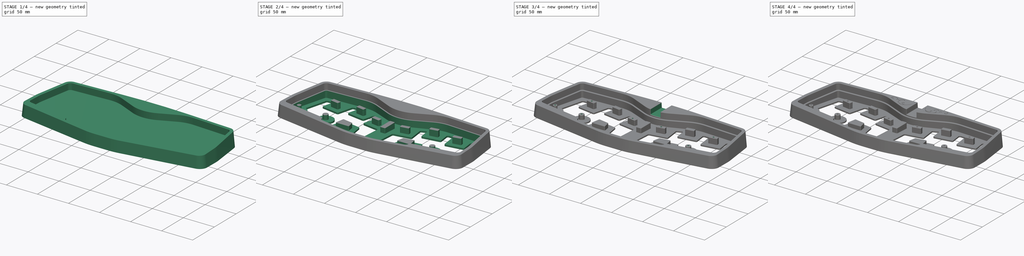
[diagram: build sequence overview — one tinted view per stage of 4, left to right]
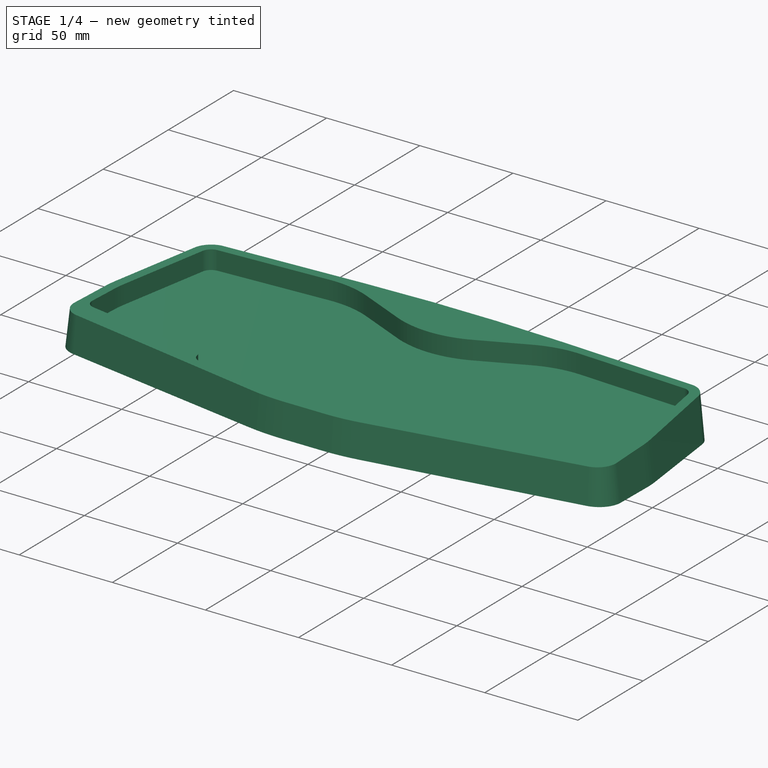
[diagram: stage 1 of 4 — iso view after this stage's code; geometry added in this stage tinted green]
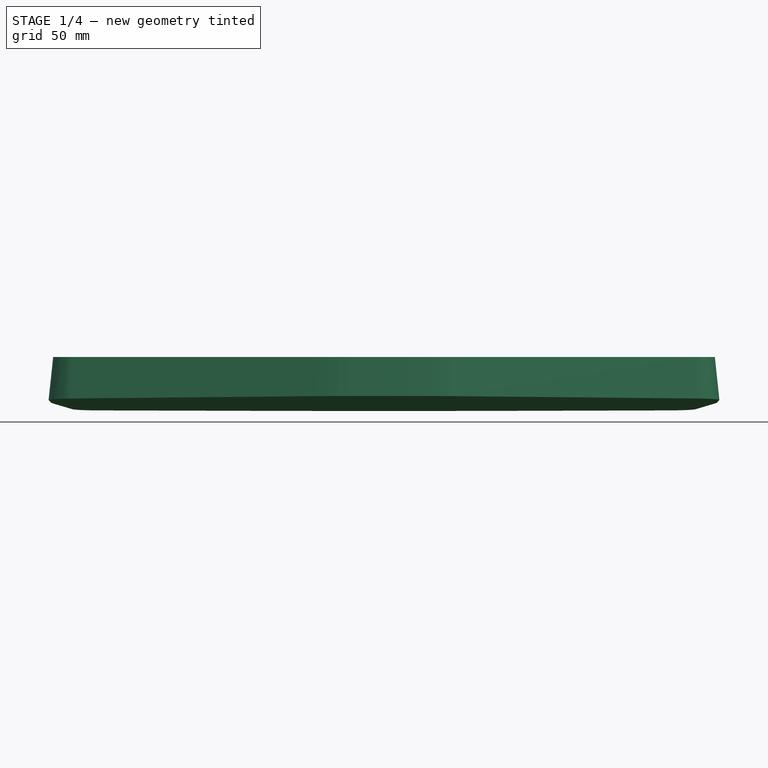
[diagram: stage 1 of 4 — front view after this stage's code; geometry added in this stage tinted green]
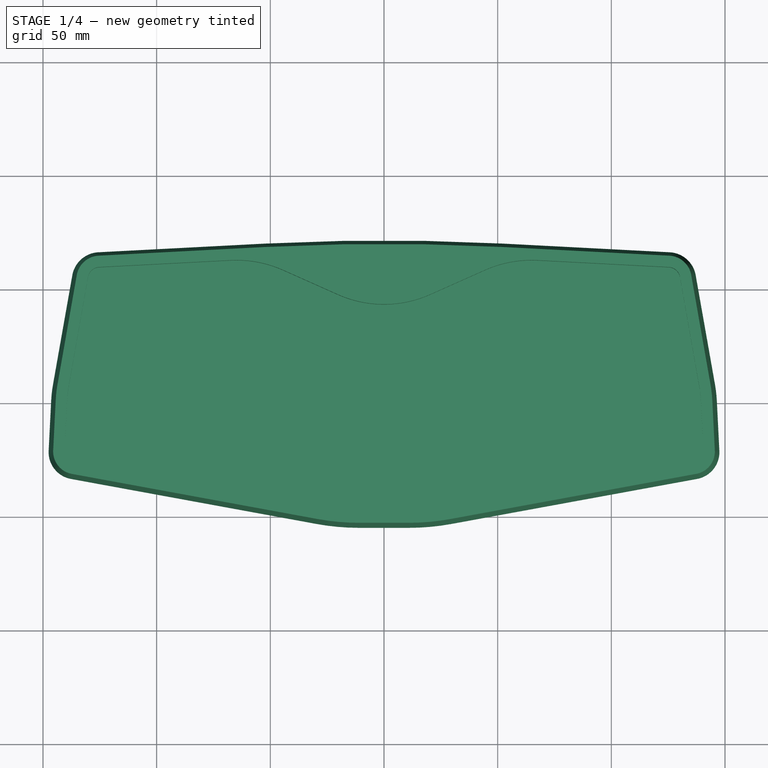
[diagram: stage 1 of 4 — top view after this stage's code; geometry added in this stage tinted green]
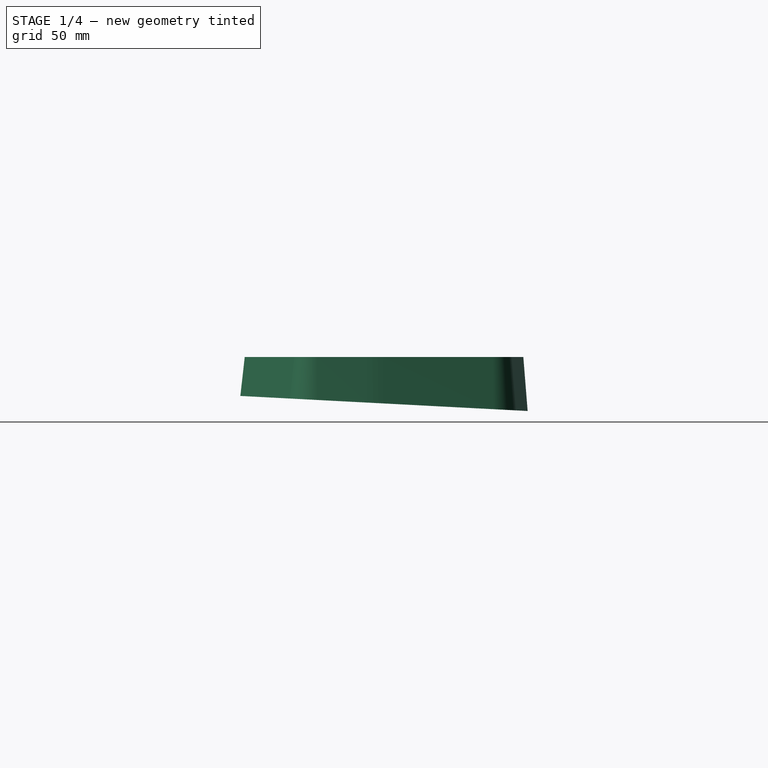
[diagram: stage 1 of 4 — right view after this stage's code; geometry added in this stage tinted green]
FCSTD DOCUMENT  (FreeCAD 0.20R)
Label: case.v3
License: All rights reserved
LicenseURL: http://en.wikipedia.org/wiki/All_rights_reserved
objects: Sketcher::SketchObject×8, PartDesign::Pocket×5, PartDesign::AdditiveLoft×1, PartDesign::Fillet×1, PartDesign::Hole×1, PartDesign::Chamfer×1, PartDesign::Body×1
note: 27 computed .brp shape members not serialized (recipe doc carries the construction recipe); baked Part::Feature solids carry a one-line shape summary decoded from their .brp

FEATURE [Sketcher::SketchObject] Sketch001  label="ext2"
  AttachmentOffset = pos=(0,0,20) rot=(0,0,1;0rad)
  FullyConstrained = false
  MapMode = 5
  Placement = pos=(0,0,20) rot=(0,0,1;0rad)
  Support = -> [XY_Plane]
  sketch-geometry (18):
    g0: ArcOfCircle CenterX=-125.032 CenterY=54.3721 CenterZ=0 NormalX=0 NormalY=0 NormalZ=1 AngleXU=0 Radius=10.25 StartAngle=1.6229 EndAngle=2.96706
    g1: LineSegment StartX=-135.127 StartY=56.152 StartZ=0 EndX=-143.638 EndY=7.87996 EndZ=0
    g2: ArcOfCircle CenterX=-89.2277 CenterY=-1.7141 CenterZ=0 NormalX=0 NormalY=0 NormalZ=1 AngleXU=0 Radius=55.25 StartAngle=2.96706 EndAngle=3.09141
    g3: LineSegment StartX=-144.408 StartY=1.05707 StartZ=0 EndX=-145.518 EndY=-21.046 EndZ=0
    g4: ArcOfCircle CenterX=-135.531 CenterY=-21.5476 CenterZ=0 NormalX=0 NormalY=0 NormalZ=1 AngleXU=0 Radius=10 StartAngle=3.09141 EndAngle=4.53068
    g5: LineSegment StartX=-125.566 StartY=64.6082 StartZ=0 EndX=-52.0832 EndY=68.4407 EndZ=0
    g6: ArcOfCircle CenterX=-1.8e-15 CenterY=-930.202 CenterZ=0 NormalX=0 NormalY=0 NormalZ=1 AngleXU=0 Radius=1000 StartAngle=1.51869 EndAngle=1.6229
    g7: LineSegment StartX=-137.338 StartY=-31.3829 StartZ=0 EndX=-29.189 EndY=-51.2536 EndZ=0
    g8: ArcOfCircle CenterX=-11.1181 CenterY=47.1 CenterZ=0 NormalX=0 NormalY=0 NormalZ=1 AngleXU=0 Radius=100 StartAngle=4.53068 EndAngle=4.71239
    g9: ArcOfCircle CenterX=11.1181 CenterY=47.1 CenterZ=0 NormalX=0 NormalY=0 NormalZ=1 AngleXU=0 Radius=100 StartAngle=4.71239 EndAngle=4.8941
    g10: LineSegment StartX=11.1181 StartY=-52.9 StartZ=0 EndX=-11.1181 EndY=-52.9 EndZ=0
    g11: ArcOfCircle CenterX=125.032 CenterY=54.3721 CenterZ=0 NormalX=0 NormalY=0 NormalZ=1 AngleXU=0 Radius=10.25 StartAngle=0.174533 EndAngle=1.51869
    g12: LineSegment StartX=135.127 StartY=56.152 StartZ=0 EndX=143.638 EndY=7.87996 EndZ=0
    g13: ArcOfCircle CenterX=89.2277 CenterY=-1.7141 CenterZ=0 NormalX=0 NormalY=0 NormalZ=1 AngleXU=0 Radius=55.25 StartAngle=0.0501779 EndAngle=0.174533
    g14: LineSegment StartX=144.408 StartY=1.05707 StartZ=0 EndX=145.518 EndY=-21.046 EndZ=0
    g15: ArcOfCircle CenterX=135.531 CenterY=-21.5476 CenterZ=0 NormalX=0 NormalY=0 NormalZ=1 AngleXU=0 Radius=10 StartAngle=4.8941 EndAngle=6.33336
    g16: LineSegment StartX=125.566 StartY=64.6082 StartZ=0 EndX=52.0832 EndY=68.4407 EndZ=0
    g17: LineSegment StartX=137.338 StartY=-31.3829 StartZ=0 EndX=29.189 EndY=-51.2536 EndZ=0
  constraints (18):
    c: Coincident(g3,g4)
    c: Coincident(g2,g3)
    c: Coincident(g1,g2)
    c: Coincident(g4,g7)
    c: Coincident(g0,g1)
    c: Coincident(g0,g5)
    c: Coincident(g5,g6)
    c: Coincident(g7,g8)
    c: Coincident(g8,g10)
    c: Coincident(g9,g10)
    c: Coincident(g9,g17)
    c: Coincident(g6,g16)
    c: Coincident(g11,g16)
    c: Coincident(g11,g12)
    c: Coincident(g15,g17)
    c: Coincident(g12,g13)
    c: Coincident(g13,g14)
    c: Coincident(g14,g15)
FEATURE [Sketcher::SketchObject] Sketch002  label="ext3"
  AttachmentOffset = pos=(0,0,0) rot=(1,0,0;-0.05236rad)
  FullyConstrained = false
  MapMode = 5
  Placement = pos=(0,0,0) rot=(1,0,0;6.23083rad)
  Support = -> [XY_Plane]
  sketch-geometry (18):
    g0: ArcOfCircle CenterX=-1.8e-15 CenterY=-930.202 CenterZ=0 NormalX=0 NormalY=0 NormalZ=1 AngleXU=0 Radius=1002 StartAngle=1.51869 EndAngle=1.6229
    g1: LineSegment StartX=125.67 StartY=66.6055 StartZ=0 EndX=52.1874 EndY=70.438 EndZ=0
    g2: ArcOfCircle CenterX=125.032 CenterY=54.3721 CenterZ=0 NormalX=0 NormalY=0 NormalZ=1 AngleXU=0 Radius=12.25 StartAngle=0.174533 EndAngle=1.51869
    g3: LineSegment StartX=137.096 StartY=56.4993 StartZ=0 EndX=145.608 EndY=8.22726 EndZ=0
    g4: ArcOfCircle CenterX=89.2277 CenterY=-1.7141 CenterZ=0 NormalX=0 NormalY=0 NormalZ=1 AngleXU=0 Radius=57.25 StartAngle=0.0501779 EndAngle=0.174533
    g5: LineSegment StartX=146.406 StartY=1.15738 StartZ=0 EndX=147.516 EndY=-20.9457 EndZ=0
    g6: ArcOfCircle CenterX=135.531 CenterY=-21.5476 CenterZ=0 NormalX=0 NormalY=0 NormalZ=1 AngleXU=0 Radius=12 StartAngle=4.8941 EndAngle=6.33336
    g7: LineSegment StartX=137.699 StartY=-33.35 StartZ=0 EndX=29.5505 EndY=-53.2207 EndZ=0
    g8: ArcOfCircle CenterX=11.1181 CenterY=47.1 CenterZ=0 NormalX=0 NormalY=0 NormalZ=1 AngleXU=0 Radius=102 StartAngle=4.71239 EndAngle=4.8941
    g9: LineSegment StartX=11.1181 StartY=-54.9 StartZ=0 EndX=-11.1181 EndY=-54.9 EndZ=0
    g10: ArcOfCircle CenterX=-11.1181 CenterY=47.1 CenterZ=0 NormalX=0 NormalY=0 NormalZ=1 AngleXU=0 Radius=102 StartAngle=4.53068 EndAngle=4.71239
    g11: LineSegment StartX=-137.699 StartY=-33.35 StartZ=0 EndX=-29.5505 EndY=-53.2207 EndZ=0
    g12: ArcOfCircle CenterX=-135.531 CenterY=-21.5476 CenterZ=0 NormalX=0 NormalY=0 NormalZ=1 AngleXU=0 Radius=12 StartAngle=3.09141 EndAngle=4.53068
    g13: LineSegment StartX=-146.406 StartY=1.15738 StartZ=0 EndX=-147.516 EndY=-20.9457 EndZ=0
    g14: ArcOfCircle CenterX=-89.2277 CenterY=-1.7141 CenterZ=0 NormalX=0 NormalY=0 NormalZ=1 AngleXU=0 Radius=57.25 StartAngle=2.96706 EndAngle=3.09141
    g15: LineSegment StartX=-137.096 StartY=56.4993 StartZ=0 EndX=-145.608 EndY=8.22726 EndZ=0
    g16: ArcOfCircle CenterX=-125.032 CenterY=54.3721 CenterZ=0 NormalX=0 NormalY=0 NormalZ=1 AngleXU=0 Radius=12.25 StartAngle=1.6229 EndAngle=2.96706
    g17: LineSegment StartX=-125.67 StartY=66.6055 StartZ=0 EndX=-52.1874 EndY=70.438 EndZ=0
  constraints (18):
    c: Coincident(g12,g13)
    c: Coincident(g13,g14)
    c: Coincident(g14,g15)
    c: Coincident(g11,g12)
    c: Coincident(g15,g16)
    c: Coincident(g16,g17)
    c: Coincident(g0,g17)
    c: Coincident(g10,g11)
    c: Coincident(g9,g10)
    c: Coincident(g8,g9)
    c: Coincident(g7,g8)
    c: Coincident(g0,g1)
    c: Coincident(g1,g2)
    c: Coincident(g2,g3)
    c: Coincident(g6,g7)
    c: Coincident(g3,g4)
    c: Coincident(g4,g5)
    c: Coincident(g5,g6)
FEATURE [PartDesign::AdditiveLoft] AdditiveLoft
  Closed = true
  Profile = -> Sketch001
  Ruled = true
  Sections = -> [Sketch002]
FEATURE [Sketcher::SketchObject] Sketch  label="ext1"
  FullyConstrained = false
  MapMode = 5
  Placement = pos=(0,0,20) rot=(0,0,1;0rad)
  Support = -> [AdditiveLoft]
  sketch-geometry (28):
    g0: ArcOfCircle CenterX=-1.8e-15 CenterY=93.0052 CenterZ=0 NormalX=0 NormalY=0 NormalZ=1 AngleXU=0 Radius=49.75 StartAngle=4.29288 EndAngle=5.1319
    g1: LineSegment StartX=20.2639 StartY=47.5691 StartZ=0 EndX=44.4162 EndY=58.3407 EndZ=0
    g2: ArcOfCircle CenterX=64.8838 CenterY=12.448 CenterZ=0 NormalX=0 NormalY=0 NormalZ=1 AngleXU=0 Radius=50.25 StartAngle=1.51869 EndAngle=1.99031
    g3: LineSegment StartX=125.306 StartY=59.615 StartZ=0 EndX=67.5009 EndY=62.6298 EndZ=0
    g4: ArcOfCircle CenterX=125.032 CenterY=54.3721 CenterZ=0 NormalX=0 NormalY=0 NormalZ=1 AngleXU=0 Radius=5.25 StartAngle=0.174533 EndAngle=1.51869
    g5: LineSegment StartX=130.203 StartY=55.2838 StartZ=0 EndX=138.714 EndY=7.01172 EndZ=0
    g6: ArcOfCircle CenterX=89.2277 CenterY=-1.7141 CenterZ=0 NormalX=0 NormalY=0 NormalZ=1 AngleXU=0 Radius=50.25 StartAngle=0.0501779 EndAngle=0.174533
    g7: LineSegment StartX=139.414 StartY=0.806282 StartZ=0 EndX=140.207 EndY=-14.9723 EndZ=0
    g8: ArcOfCircle CenterX=134.963 CenterY=-15.2356 CenterZ=0 NormalX=0 NormalY=0 NormalZ=1 AngleXU=0 Radius=5.25 StartAngle=4.88692 EndAngle=6.33336
    g9: LineSegment StartX=135.875 StartY=-20.4059 StartZ=0 EndX=73.6679 EndY=-31.3747 EndZ=0
    g10: ArcOfCircle CenterX=74.4927 CenterY=-36.0525 CenterZ=0 NormalX=0 NormalY=0 NormalZ=1 AngleXU=0 Radius=4.75 StartAngle=1.74533 EndAngle=2.96723
    g11: ArcOfCircle CenterX=64.6443 CenterY=-34.3177 CenterZ=0 NormalX=0 NormalY=0 NormalZ=1 AngleXU=0 Radius=5.25 StartAngle=4.8941 EndAngle=6.10882
    g12: LineSegment StartX=65.593 StartY=-39.4813 StartZ=0 EndX=24.2757 EndY=-47.0727 EndZ=0
    g13: ArcOfCircle CenterX=15.195 CenterY=2.35 CenterZ=0 NormalX=0 NormalY=0 NormalZ=1 AngleXU=0 Radius=50.25 StartAngle=4.71239 EndAngle=4.8941
    g14: LineSegment StartX=-20.2639 StartY=47.5691 StartZ=0 EndX=-44.4162 EndY=58.3407 EndZ=0
    g15: ArcOfCircle CenterX=-64.8838 CenterY=12.448 CenterZ=0 NormalX=0 NormalY=0 NormalZ=1 AngleXU=0 Radius=50.25 StartAngle=1.15128 EndAngle=1.6229
    g16: LineSegment StartX=-125.306 StartY=59.615 StartZ=0 EndX=-67.5009 EndY=62.6298 EndZ=0
    g17: ArcOfCircle CenterX=-125.032 CenterY=54.3721 CenterZ=0 NormalX=0 NormalY=0 NormalZ=1 AngleXU=0 Radius=5.25 StartAngle=1.6229 EndAngle=2.96706
    g18: LineSegment StartX=-130.203 StartY=55.2838 StartZ=0 EndX=-138.714 EndY=7.01172 EndZ=0
    g19: ArcOfCircle CenterX=-89.2277 CenterY=-1.7141 CenterZ=0 NormalX=0 NormalY=0 NormalZ=1 AngleXU=0 Radius=50.25 StartAngle=2.96706 EndAngle=3.09141
    g20: LineSegment StartX=-139.414 StartY=0.806282 StartZ=0 EndX=-140.207 EndY=-14.9723 EndZ=0
    g21: ArcOfCircle CenterX=-134.963 CenterY=-15.2356 CenterZ=0 NormalX=0 NormalY=0 NormalZ=1 AngleXU=0 Radius=5.25 StartAngle=3.09141 EndAngle=4.53786
    g22: LineSegment StartX=-135.875 StartY=-20.4059 StartZ=0 EndX=-73.6679 EndY=-31.3747 EndZ=0
    g23: ArcOfCircle CenterX=-74.4927 CenterY=-36.0525 CenterZ=0 NormalX=0 NormalY=0 NormalZ=1 AngleXU=0 Radius=4.75 StartAngle=0.174368 EndAngle=1.39626
    g24: ArcOfCircle CenterX=-64.6443 CenterY=-34.3177 CenterZ=0 NormalX=0 NormalY=0 NormalZ=1 AngleXU=0 Radius=5.25 StartAngle=3.31596 EndAngle=4.53068
    g25: LineSegment StartX=-65.593 StartY=-39.4813 StartZ=0 EndX=-24.2757 EndY=-47.0727 EndZ=0
    g26: ArcOfCircle CenterX=-15.195 CenterY=2.35 CenterZ=0 NormalX=0 NormalY=0 NormalZ=1 AngleXU=0 Radius=50.25 StartAngle=4.53068 EndAngle=4.71239
    g27: LineSegment StartX=15.195 StartY=-47.9 StartZ=0 EndX=-15.195 EndY=-47.9 EndZ=0
  constraints (28):
    c: Coincident(g20,g21)
    c: Coincident(g19,g20)
    c: Coincident(g18,g19)
    c: Coincident(g21,g22)
    c: Coincident(g17,g18)
    c: Coincident(g16,g17)
    c: Coincident(g22,g23)
    c: Coincident(g23,g24)
    c: Coincident(g15,g16)
    c: Coincident(g24,g25)
    c: Coincident(g14,g15)
    c: Coincident(g25,g26)
    c: Coincident(g0,g14)
    c: Coincident(g26,g27)
    c: Coincident(g13,g27)
    c: Coincident(g0,g1)
    c: Coincident(g12,g13)
    c: Coincident(g1,g2)
    c: Coincident(g11,g12)
    c: Coincident(g2,g3)
    c: Coincident(g10,g11)
    c: Coincident(g9,g10)
    c: Coincident(g3,g4)
    c: Coincident(g4,g5)
    c: Coincident(g8,g9)
    c: Coincident(g5,g6)
    c: Coincident(g6,g7)
    c: Coincident(g7,g8)
FEATURE [PartDesign::Pocket] Pocket
  BaseFeature = -> AdditiveLoft
  Direction = (0,0,-1)
  Length = 10
  Length2 = 5
  Profile = -> Sketch
  ReferenceAxis = -> Sketch [N_Axis]
  Type = 0
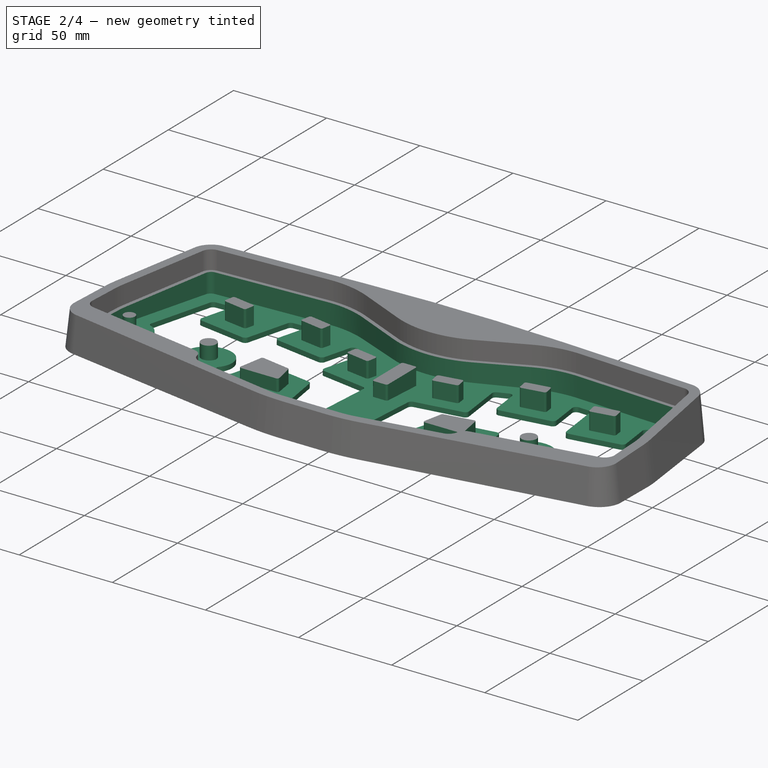
[diagram: stage 2 of 4 — iso view after this stage's code; geometry added in this stage tinted green]
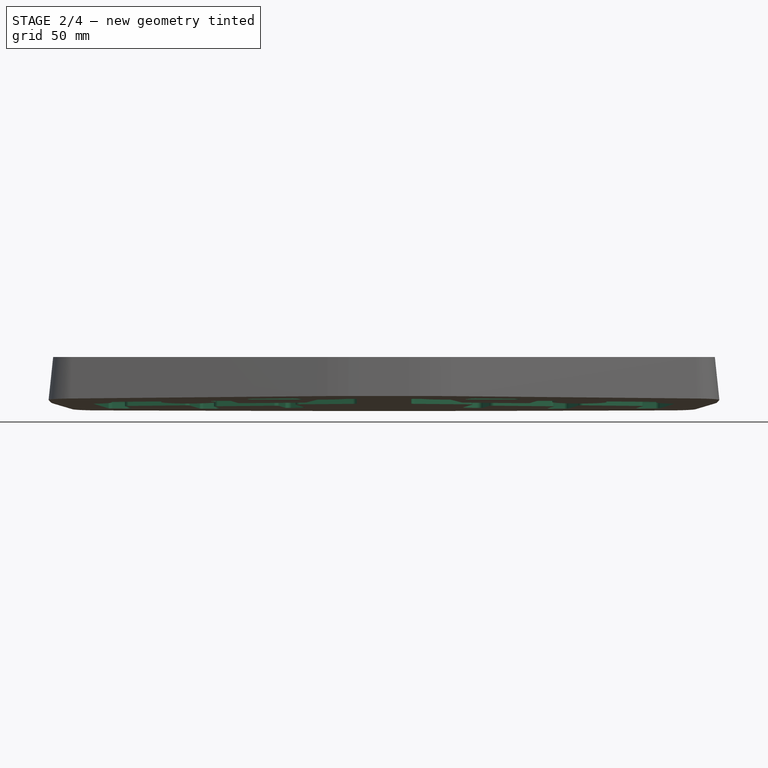
[diagram: stage 2 of 4 — front view after this stage's code; geometry added in this stage tinted green]
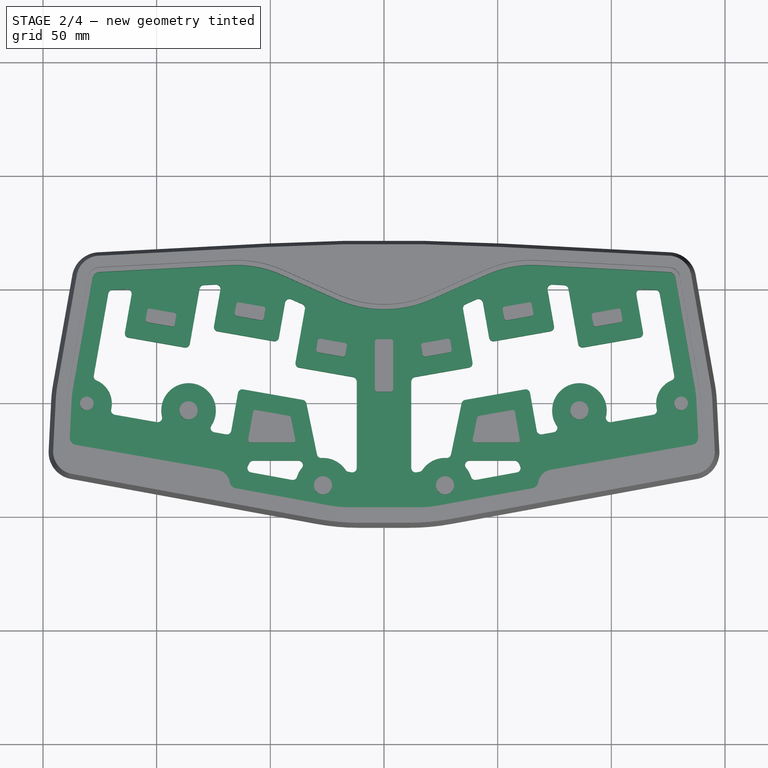
[diagram: stage 2 of 4 — top view after this stage's code; geometry added in this stage tinted green]
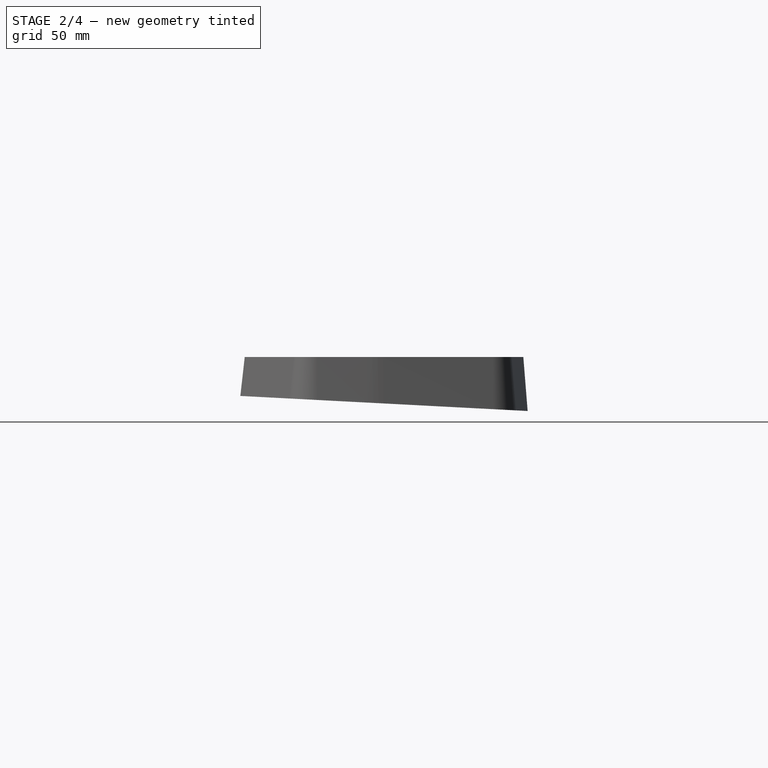
[diagram: stage 2 of 4 — right view after this stage's code; geometry added in this stage tinted green]
FEATURE [Sketcher::SketchObject] Sketch007  label="int"
  FullyConstrained = false
  MapMode = 5
  Placement = pos=(0,0,10) rot=(0,0,1;0rad)
  Support = -> [Pocket]
  sketch-geometry (106):
    g0: ArcOfCircle CenterX=-64.8838 CenterY=12.448 CenterZ=0 NormalX=0 NormalY=0 NormalZ=1 AngleXU=0 Radius=48.25 StartAngle=1.15128 EndAngle=1.6229
    g1: LineSegment StartX=-21.0785 StartY=45.7425 StartZ=0 EndX=-45.2308 EndY=56.5141 EndZ=0
    g2: ArcOfCircle CenterX=-1.8e-15 CenterY=93.0052 CenterZ=0 NormalX=0 NormalY=0 NormalZ=1 AngleXU=0 Radius=51.75 StartAngle=4.29288 EndAngle=5.1319
    g3: LineSegment StartX=21.0785 StartY=45.7425 StartZ=0 EndX=45.2308 EndY=56.5141 EndZ=0
    g4: LineSegment StartX=-125.202 StartY=57.6177 StartZ=0 EndX=-67.3968 EndY=60.6325 EndZ=0
    g5: LineSegment StartX=-128.233 StartY=54.9365 StartZ=0 EndX=-136.745 EndY=6.66442 EndZ=0
    g6: ArcOfCircle CenterX=-89.2277 CenterY=-1.7141 CenterZ=0 NormalX=0 NormalY=0 NormalZ=1 AngleXU=0 Radius=48.25 StartAngle=2.96706 EndAngle=3.09141
    g7: LineSegment StartX=-137.417 StartY=0.705968 StartZ=0 EndX=-138.209 EndY=-15.0726 EndZ=0
    g8: ArcOfCircle CenterX=-134.963 CenterY=-15.2356 CenterZ=0 NormalX=0 NormalY=0 NormalZ=1 AngleXU=0 Radius=3.25 StartAngle=3.09141 EndAngle=4.53786
    g9: LineSegment StartX=-135.528 StartY=-18.4363 StartZ=0 EndX=-73.3206 EndY=-29.4051 EndZ=0
    g10: ArcOfCircle CenterX=-74.4927 CenterY=-36.0525 CenterZ=0 NormalX=0 NormalY=0 NormalZ=1 AngleXU=0 Radius=6.75 StartAngle=0.174368 EndAngle=1.39626
    g11: ArcOfCircle CenterX=-64.6443 CenterY=-34.3177 CenterZ=0 NormalX=0 NormalY=0 NormalZ=1 AngleXU=0 Radius=3.25 StartAngle=3.31596 EndAngle=4.53068
    g12: LineSegment StartX=-65.2316 StartY=-37.5142 StartZ=0 EndX=-23.9143 EndY=-45.1056 EndZ=0
    g13: ArcOfCircle CenterX=-15.195 CenterY=2.35 CenterZ=0 NormalX=0 NormalY=0 NormalZ=1 AngleXU=0 Radius=48.25 StartAngle=4.53068 EndAngle=4.71239
    g14: LineSegment StartX=15.195 StartY=-45.9 StartZ=0 EndX=-15.195 EndY=-45.9 EndZ=0
    g15: ArcOfCircle CenterX=15.195 CenterY=2.35 CenterZ=0 NormalX=0 NormalY=0 NormalZ=1 AngleXU=0 Radius=48.25 StartAngle=4.71239 EndAngle=4.8941
    g16: LineSegment StartX=65.2316 StartY=-37.5142 StartZ=0 EndX=23.9143 EndY=-45.1056 EndZ=0
    g17: ArcOfCircle CenterX=64.6443 CenterY=-34.3177 CenterZ=0 NormalX=0 NormalY=0 NormalZ=1 AngleXU=0 Radius=3.25 StartAngle=4.8941 EndAngle=6.10882
    g18: ArcOfCircle CenterX=74.4927 CenterY=-36.0525 CenterZ=0 NormalX=0 NormalY=0 NormalZ=1 AngleXU=0 Radius=6.75 StartAngle=1.74533 EndAngle=2.96723
    g19: LineSegment StartX=135.528 StartY=-18.4363 StartZ=0 EndX=73.3206 EndY=-29.4051 EndZ=0
    g20: ArcOfCircle CenterX=134.963 CenterY=-15.2356 CenterZ=0 NormalX=0 NormalY=0 NormalZ=1 AngleXU=0 Radius=3.25 StartAngle=4.88692 EndAngle=6.33336
    g21: LineSegment StartX=137.417 StartY=0.705968 StartZ=0 EndX=138.209 EndY=-15.0726 EndZ=0
    g22: LineSegment StartX=128.233 StartY=54.9365 StartZ=0 EndX=136.745 EndY=6.66442 EndZ=0
    g23: ArcOfCircle CenterX=89.2277 CenterY=-1.7141 CenterZ=0 NormalX=0 NormalY=0 NormalZ=1 AngleXU=0 Radius=48.25 StartAngle=0.0501779 EndAngle=0.174533
    g24: ArcOfCircle CenterX=125.032 CenterY=54.3721 CenterZ=0 NormalX=0 NormalY=0 NormalZ=1 AngleXU=0 Radius=3.25 StartAngle=0.174533 EndAngle=1.51869
    g25: LineSegment StartX=125.202 StartY=57.6177 StartZ=0 EndX=67.3968 EndY=60.6325 EndZ=0
    g26: ArcOfCircle CenterX=64.8838 CenterY=12.448 CenterZ=0 NormalX=0 NormalY=0 NormalZ=1 AngleXU=0 Radius=48.25 StartAngle=1.51869 EndAngle=1.99031
    g27: ArcOfCircle CenterX=-125.032 CenterY=54.3721 CenterZ=0 NormalX=0 NormalY=0 NormalZ=1 AngleXU=0 Radius=3.25 StartAngle=1.6229 EndAngle=2.96706
    g28: Circle CenterX=26.8409 CenterY=-36.2437 CenterZ=0 NormalX=0 NormalY=0 NormalZ=-1 AngleXU=0 Radius=4
    g29: Circle CenterX=85.9654 CenterY=-3.27486 CenterZ=0 NormalX=0 NormalY=0 NormalZ=-1 AngleXU=0 Radius=4
    g30: ArcOfCircle CenterX=103.175 CenterY=40.5036 CenterZ=0 NormalX=0 NormalY=0 NormalZ=1 AngleXU=0 Radius=1 StartAngle=0.174533 EndAngle=1.74533
    g31: LineSegment StartX=104.863 StartY=36.6888 StartZ=0 EndX=104.16 EndY=40.6773 EndZ=0
    g32: ArcOfCircle CenterX=103.878 CenterY=36.5151 CenterZ=0 NormalX=0 NormalY=0 NormalZ=1 AngleXU=0 Radius=1 StartAngle=4.88692 EndAngle=6.45772
    g33: LineSegment StartX=93.2189 StartY=33.6202 StartZ=0 EndX=104.052 EndY=35.5303 EndZ=0
    g34: ArcOfCircle CenterX=93.0452 CenterY=34.605 CenterZ=0 NormalX=0 NormalY=0 NormalZ=1 AngleXU=0 Radius=1 StartAngle=3.31613 EndAngle=4.88692
    g35: LineSegment StartX=91.3571 StartY=38.4198 StartZ=0 EndX=92.0604 EndY=34.4314 EndZ=0
    g36: LineSegment StartX=103.001 StartY=41.4884 StartZ=0 EndX=92.1683 EndY=39.5783 EndZ=0
    g37: ArcOfCircle CenterX=92.342 CenterY=38.5935 CenterZ=0 NormalX=0 NormalY=0 NormalZ=1 AngleXU=0 Radius=1 StartAngle=1.74533 EndAngle=3.31613
    g38: ArcOfCircle CenterX=17.2996 CenterY=25.3615 CenterZ=0 NormalX=0 NormalY=0 NormalZ=1 AngleXU=0 Radius=1 StartAngle=1.74533 EndAngle=3.31613
    g39: LineSegment StartX=27.9588 StartY=28.2564 StartZ=0 EndX=17.126 EndY=26.3463 EndZ=0
    g40: ArcOfCircle CenterX=28.1325 CenterY=27.2716 CenterZ=0 NormalX=0 NormalY=0 NormalZ=1 AngleXU=0 Radius=1 StartAngle=0.174533 EndAngle=1.74533
    g41: LineSegment StartX=29.8206 StartY=23.4568 StartZ=0 EndX=29.1173 EndY=27.4453 EndZ=0
    g42: ArcOfCircle CenterX=28.8358 CenterY=23.2832 CenterZ=0 NormalX=0 NormalY=0 NormalZ=1 AngleXU=0 Radius=1 StartAngle=4.88692 EndAngle=6.45772
    g43: LineSegment StartX=18.1765 StartY=20.3882 StartZ=0 EndX=29.0094 EndY=22.2983 EndZ=0
    g44: LineSegment StartX=16.3148 StartY=25.1878 StartZ=0 EndX=17.0181 EndY=21.1994 EndZ=0
    g45: ArcOfCircle CenterX=18.0029 CenterY=21.373 CenterZ=0 NormalX=0 NormalY=0 NormalZ=1 AngleXU=0 Radius=1 StartAngle=3.31613 EndAngle=4.88692
    g46: ArcOfCircle CenterX=56.6123 CenterY=-4.09698 CenterZ=0 NormalX=0 NormalY=0 NormalZ=1 AngleXU=0 Radius=1 StartAngle=0.174533 EndAngle=1.74533
    g47: LineSegment StartX=57.5971 StartY=-3.92333 StartZ=0 EndX=59.7598 EndY=-16.1889 EndZ=0
    g48: ArcOfCircle CenterX=58.775 CenterY=-16.3625 CenterZ=0 NormalX=0 NormalY=0 NormalZ=1 AngleXU=0 Radius=1 StartAngle=4.71239 EndAngle=6.45772
    g49: LineSegment StartX=39.9709 StartY=-17.3625 StartZ=0 EndX=58.775 EndY=-17.3625 EndZ=0
    g50: ArcOfCircle CenterX=39.9709 CenterY=-16.3625 CenterZ=0 NormalX=0 NormalY=0 NormalZ=1 AngleXU=0 Radius=1 StartAngle=2.93829 EndAngle=4.71239
    g51: LineSegment StartX=40.9878 StartY=-6.47739 StartZ=0 EndX=38.9915 EndY=-16.1606 EndZ=0
    g52: LineSegment StartX=41.7935 StartY=-5.69449 StartZ=0 EndX=56.4386 EndY=-3.11217 EndZ=0
    g53: ArcOfCircle CenterX=41.9672 CenterY=-6.6793 CenterZ=0 NormalX=0 NormalY=0 NormalZ=1 AngleXU=0 Radius=1 StartAngle=1.74533 EndAngle=2.93829
    g54: ArcOfCircle CenterX=63.9997 CenterY=43.2679 CenterZ=0 NormalX=0 NormalY=0 NormalZ=1 AngleXU=0 Radius=1 StartAngle=0.174533 EndAngle=1.74533
    g55: LineSegment StartX=64.9845 StartY=43.4416 StartZ=0 EndX=65.6878 EndY=39.4531 EndZ=0
    g56: ArcOfCircle CenterX=64.7029 CenterY=39.2794 CenterZ=0 NormalX=0 NormalY=0 NormalZ=1 AngleXU=0 Radius=1 StartAngle=4.88692 EndAngle=6.45772
    g57: LineSegment StartX=54.0437 StartY=36.3845 StartZ=0 EndX=64.8766 EndY=38.2946 EndZ=0
    g58: ArcOfCircle CenterX=53.8701 CenterY=37.3693 CenterZ=0 NormalX=0 NormalY=0 NormalZ=1 AngleXU=0 Radius=1 StartAngle=3.31613 EndAngle=4.88692
    g59: LineSegment StartX=52.182 StartY=41.1841 StartZ=0 EndX=52.8853 EndY=37.1957 EndZ=0
    g60: LineSegment StartX=52.9931 StartY=42.3426 StartZ=0 EndX=63.826 EndY=44.2527 EndZ=0
    g61: ArcOfCircle CenterX=53.1668 CenterY=41.3578 CenterZ=0 NormalX=0 NormalY=0 NormalZ=1 AngleXU=0 Radius=1 StartAngle=1.74533 EndAngle=3.31613
    g62: Circle CenterX=130.715 CenterY=-0.220297 CenterZ=0 NormalX=0 NormalY=0 NormalZ=-1 AngleXU=0 Radius=3
    g63: ArcOfCircle CenterX=3 CenterY=27 CenterZ=0 NormalX=0 NormalY=0 NormalZ=1 AngleXU=0 Radius=1 StartAngle=0 EndAngle=1.5708
    g64: LineSegment StartX=4 StartY=6 StartZ=0 EndX=4 EndY=27 EndZ=0
    g65: ArcOfCircle CenterX=3 CenterY=6 CenterZ=0 NormalX=0 NormalY=0 NormalZ=1 AngleXU=0 Radius=1 StartAngle=4.71239 EndAngle=6.28319
    g66: LineSegment StartX=-3 StartY=5 StartZ=0 EndX=3 EndY=5 EndZ=0
    g67: ArcOfCircle CenterX=-3 CenterY=6 CenterZ=0 NormalX=0 NormalY=0 NormalZ=1 AngleXU=0 Radius=1 StartAngle=3.14159 EndAngle=4.71239
    g68: LineSegment StartX=-4 StartY=27 StartZ=0 EndX=-4 EndY=6 EndZ=0
    g69: LineSegment StartX=3 StartY=28 StartZ=0 EndX=-3 EndY=28 EndZ=0
    g70: ArcOfCircle CenterX=-3 CenterY=27 CenterZ=0 NormalX=0 NormalY=0 NormalZ=1 AngleXU=0 Radius=1 StartAngle=1.5708 EndAngle=3.14159
    g71: Circle CenterX=-26.8409 CenterY=-36.2438 CenterZ=0 NormalX=0 NormalY=0 NormalZ=-1 AngleXU=0 Radius=4
    g72: Circle CenterX=-85.9654 CenterY=-3.27486 CenterZ=0 NormalX=0 NormalY=0 NormalZ=-1 AngleXU=0 Radius=4
    g73: ArcOfCircle CenterX=-103.175 CenterY=40.5036 CenterZ=0 NormalX=0 NormalY=0 NormalZ=1 AngleXU=0 Radius=1 StartAngle=1.39626 EndAngle=2.96706
    g74: LineSegment StartX=-104.863 StartY=36.6888 StartZ=0 EndX=-104.16 EndY=40.6773 EndZ=0
    g75: ArcOfCircle CenterX=-103.878 CenterY=36.5151 CenterZ=0 NormalX=0 NormalY=0 NormalZ=1 AngleXU=0 Radius=1 StartAngle=2.96706 EndAngle=4.53786
    g76: LineSegment StartX=-93.2189 StartY=33.6202 StartZ=0 EndX=-104.052 EndY=35.5303 EndZ=0
    g77: ArcOfCircle CenterX=-93.0452 CenterY=34.605 CenterZ=0 NormalX=0 NormalY=0 NormalZ=1 AngleXU=0 Radius=1 StartAngle=4.53786 EndAngle=6.10865
    g78: LineSegment StartX=-91.3571 StartY=38.4198 StartZ=0 EndX=-92.0604 EndY=34.4314 EndZ=0
    g79: LineSegment StartX=-103.001 StartY=41.4884 StartZ=0 EndX=-92.1683 EndY=39.5783 EndZ=0
    g80: ArcOfCircle CenterX=-92.342 CenterY=38.5935 CenterZ=0 NormalX=0 NormalY=0 NormalZ=1 AngleXU=0 Radius=1 StartAngle=6.10865 EndAngle=7.67945
    g81: ArcOfCircle CenterX=-17.2996 CenterY=25.3615 CenterZ=0 NormalX=0 NormalY=0 NormalZ=1 AngleXU=0 Radius=1 StartAngle=6.10865 EndAngle=7.67945
    g82: LineSegment StartX=-27.9588 StartY=28.2564 StartZ=0 EndX=-17.126 EndY=26.3463 EndZ=0
    g83: ArcOfCircle CenterX=-28.1325 CenterY=27.2716 CenterZ=0 NormalX=0 NormalY=0 NormalZ=1 AngleXU=0 Radius=1 StartAngle=1.39626 EndAngle=2.96706
    g84: LineSegment StartX=-29.8206 StartY=23.4568 StartZ=0 EndX=-29.1173 EndY=27.4453 EndZ=0
    g85: ArcOfCircle CenterX=-28.8358 CenterY=23.2832 CenterZ=0 NormalX=0 NormalY=0 NormalZ=1 AngleXU=0 Radius=1 StartAngle=2.96706 EndAngle=4.53786
    g86: LineSegment StartX=-18.1765 StartY=20.3882 StartZ=0 EndX=-29.0094 EndY=22.2983 EndZ=0
    g87: LineSegment StartX=-16.3148 StartY=25.1878 StartZ=0 EndX=-17.0181 EndY=21.1994 EndZ=0
    g88: ArcOfCircle CenterX=-18.0029 CenterY=21.373 CenterZ=0 NormalX=0 NormalY=0 NormalZ=1 AngleXU=0 Radius=1 StartAngle=4.53786 EndAngle=6.10865
    g89: ArcOfCircle CenterX=-56.6123 CenterY=-4.09698 CenterZ=0 NormalX=0 NormalY=0 NormalZ=1 AngleXU=0 Radius=1 StartAngle=1.39626 EndAngle=2.96706
    g90: LineSegment StartX=-57.5971 StartY=-3.92333 StartZ=0 EndX=-59.7598 EndY=-16.1889 EndZ=0
    g91: ArcOfCircle CenterX=-58.775 CenterY=-16.3625 CenterZ=0 NormalX=0 NormalY=0 NormalZ=1 AngleXU=0 Radius=1 StartAngle=2.96706 EndAngle=4.71239
    g92: LineSegment StartX=-39.9709 StartY=-17.3625 StartZ=0 EndX=-58.775 EndY=-17.3625 EndZ=0
    g93: ArcOfCircle CenterX=-39.9709 CenterY=-16.3625 CenterZ=0 NormalX=0 NormalY=0 NormalZ=1 AngleXU=0 Radius=1 StartAngle=4.71239 EndAngle=6.48649
    g94: LineSegment StartX=-40.9878 StartY=-6.47739 StartZ=0 EndX=-38.9915 EndY=-16.1606 EndZ=0
    g95: LineSegment StartX=-41.7935 StartY=-5.69449 StartZ=0 EndX=-56.4386 EndY=-3.11217 EndZ=0
    g96: ArcOfCircle CenterX=-41.9672 CenterY=-6.6793 CenterZ=0 NormalX=0 NormalY=0 NormalZ=1 AngleXU=0 Radius=1 StartAngle=0.203306 EndAngle=1.39626
    g97: ArcOfCircle CenterX=-63.9997 CenterY=43.2679 CenterZ=0 NormalX=0 NormalY=0 NormalZ=1 AngleXU=0 Radius=1 StartAngle=1.39626 EndAngle=2.96706
    g98: LineSegment StartX=-64.9845 StartY=43.4416 StartZ=0 EndX=-65.6878 EndY=39.4531 EndZ=0
    g99: ArcOfCircle CenterX=-64.7029 CenterY=39.2794 CenterZ=0 NormalX=0 NormalY=0 NormalZ=1 AngleXU=0 Radius=1 StartAngle=2.96706 EndAngle=4.53786
    g100: LineSegment StartX=-54.0437 StartY=36.3845 StartZ=0 EndX=-64.8766 EndY=38.2946 EndZ=0
    g101: ArcOfCircle CenterX=-53.8701 CenterY=37.3693 CenterZ=0 NormalX=0 NormalY=0 NormalZ=1 AngleXU=0 Radius=1 StartAngle=4.53786 EndAngle=6.10865
    g102: LineSegment StartX=-52.182 StartY=41.1841 StartZ=0 EndX=-52.8853 EndY=37.1957 EndZ=0
    g103: LineSegment StartX=-52.9931 StartY=42.3426 StartZ=0 EndX=-63.826 EndY=44.2527 EndZ=0
    g104: ArcOfCircle CenterX=-53.1668 CenterY=41.3578 CenterZ=0 NormalX=0 NormalY=0 NormalZ=1 AngleXU=0 Radius=1 StartAngle=6.10865 EndAngle=7.67945
    g105: Circle CenterX=-130.715 CenterY=-0.220297 CenterZ=0 NormalX=0 NormalY=0 NormalZ=-1 AngleXU=0 Radius=3
FEATURE [PartDesign::Pocket] Pocket001
  BaseFeature = -> Pocket
  Direction = (0,0,-1)
  Length = 0
  Length2 = 5
  Offset = -2.5
  Profile = -> Sketch007
  ReferenceAxis = -> Sketch007 [N_Axis]
  Type = 3
  UpToFace = -> Pocket [Face48]
FEATURE [Sketcher::SketchObject] Sketch006  label="ajour"
  FullyConstrained = false
  MapMode = 5
  Placement = pos=(0,0.130661,2.49315) rot=(-1,0,0;0.05236rad)
  Support = -> [Pocket001]
  sketch-geometry (106):
    g0: ArcOfCircle CenterX=-27.5237 CenterY=-22.2604 CenterZ=0 NormalX=0 NormalY=0 NormalZ=1 AngleXU=0 Radius=2 StartAngle=3.3449 EndAngle=4.76118
    g1: ArcOfCircle CenterX=-15.2466 CenterY=-28.3969 CenterZ=0 NormalX=0 NormalY=0 NormalZ=1 AngleXU=0 Radius=2 StartAngle=3.73657 EndAngle=4.53068
    g2: LineSegment StartX=-15.6081 StartY=-30.3639 StartZ=0 EndX=-14.3614 EndY=-30.593 EndZ=0
    g3: ArcOfCircle CenterX=-14 CenterY=-28.6259 CenterZ=0 NormalX=0 NormalY=0 NormalZ=1 AngleXU=0 Radius=2 StartAngle=4.53068 EndAngle=6.28319
    g4: LineSegment StartX=-34.1122 StartY=-0.207155 StartZ=0 EndX=-29.4825 EndY=-22.6642 EndZ=0
    g5: ArcOfCircle CenterX=-36.071 CenterY=-0.610972 CenterZ=0 NormalX=0 NormalY=0 NormalZ=1 AngleXU=0 Radius=2 StartAngle=0.203306 EndAngle=1.39626
    g6: LineSegment StartX=-35.7237 StartY=1.35864 StartZ=0 EndX=-61.9431 EndY=5.98183 EndZ=0
    g7: ArcOfCircle CenterX=-62.2904 CenterY=4.01222 CenterZ=0 NormalX=0 NormalY=0 NormalZ=1 AngleXU=0 Radius=2 StartAngle=1.39626 EndAngle=2.96706
    g8: LineSegment StartX=-64.26 StartY=4.35951 StartZ=0 EndX=-67.1816 EndY=-12.2099 EndZ=0
    g9: ArcOfCircle CenterX=-69.1512 CenterY=-11.8626 CenterZ=0 NormalX=0 NormalY=0 NormalZ=1 AngleXU=0 Radius=2 StartAngle=4.53786 EndAngle=6.10865
    g10: LineSegment StartX=-74.6114 StartY=-12.9307 StartZ=0 EndX=-69.4985 EndY=-13.8322 EndZ=0
    g11: ArcOfCircle CenterX=-74.2641 CenterY=-10.9611 CenterZ=0 NormalX=0 NormalY=0 NormalZ=1 AngleXU=0 Radius=2 StartAngle=2.56041 EndAngle=4.53786
    g12: ArcOfCircle CenterX=-125.69 CenterY=11.7694 CenterZ=0 NormalX=0 NormalY=0 NormalZ=1 AngleXU=0 Radius=2 StartAngle=2.96706 EndAngle=4.31555
    g13: ArcOfCircle CenterX=-118.07 CenterY=-3.23693 CenterZ=0 NormalX=0 NormalY=0 NormalZ=1 AngleXU=0 Radius=2 StartAngle=2.90741 EndAngle=4.53786
    g14: LineSegment StartX=-118.417 StartY=-5.20655 StartZ=0 EndX=-99.9373 EndY=-8.46503 EndZ=0
    g15: ArcOfCircle CenterX=-99.59 CenterY=-6.49541 CenterZ=0 NormalX=0 NormalY=0 NormalZ=1 AngleXU=0 Radius=2 StartAngle=4.53786 EndAngle=6.5153
    g16: LineSegment StartX=-121.287 StartY=48.2583 StartZ=0 EndX=-127.66 EndY=12.1167 EndZ=0
    g17: ArcOfCircle CenterX=-119.318 CenterY=47.911 CenterZ=0 NormalX=0 NormalY=0 NormalZ=1 AngleXU=0 Radius=2 StartAngle=1.6229 EndAngle=2.96706
    g18: LineSegment StartX=-119.422 StartY=49.9083 StartZ=0 EndX=-113.084 EndY=50.2388 EndZ=0
    g19: ArcOfCircle CenterX=-112.98 CenterY=48.2415 CenterZ=0 NormalX=0 NormalY=0 NormalZ=1 AngleXU=0 Radius=2 StartAngle=6.10865 EndAngle=7.90609
    g20: LineSegment StartX=-113.957 StartY=31.1843 StartZ=0 EndX=-111.011 EndY=47.8943 EndZ=0
    g21: ArcOfCircle CenterX=-111.987 CenterY=30.837 CenterZ=0 NormalX=0 NormalY=0 NormalZ=1 AngleXU=0 Radius=2 StartAngle=2.96706 EndAngle=4.53786
    g22: LineSegment StartX=-87.7144 StartY=24.5262 StartZ=0 EndX=-112.335 EndY=28.8674 EndZ=0
    g23: ArcOfCircle CenterX=-87.3671 CenterY=26.4958 CenterZ=0 NormalX=0 NormalY=0 NormalZ=1 AngleXU=0 Radius=2 StartAngle=4.53786 EndAngle=6.10865
    g24: LineSegment StartX=-81.1297 StartY=50.3527 StartZ=0 EndX=-85.3975 EndY=26.1485 EndZ=0
    g25: ArcOfCircle CenterX=-79.16 CenterY=50.0054 CenterZ=0 NormalX=0 NormalY=0 NormalZ=1 AngleXU=0 Radius=2 StartAngle=1.6229 EndAngle=2.96706
    g26: LineSegment StartX=-79.2642 StartY=52.0027 StartZ=0 EndX=-74.0375 EndY=52.2753 EndZ=0
    g27: ArcOfCircle CenterX=-73.9333 CenterY=50.278 CenterZ=0 NormalX=0 NormalY=0 NormalZ=1 AngleXU=0 Radius=2 StartAngle=6.10865 EndAngle=7.90609
    g28: LineSegment StartX=-71.9637 StartY=49.9307 StartZ=0 EndX=-74.7817 EndY=33.9486 EndZ=0
    g29: ArcOfCircle CenterX=-72.8121 CenterY=33.6013 CenterZ=0 NormalX=0 NormalY=0 NormalZ=1 AngleXU=0 Radius=2 StartAngle=2.96706 EndAngle=4.53786
    g30: LineSegment StartX=-48.5392 StartY=27.2905 StartZ=0 EndX=-73.1594 EndY=31.6317 EndZ=0
    g31: ArcOfCircle CenterX=-48.1919 CenterY=29.2601 CenterZ=0 NormalX=0 NormalY=0 NormalZ=1 AngleXU=0 Radius=2 StartAngle=4.53786 EndAngle=6.10865
    g32: LineSegment StartX=-43.5148 StartY=44.2682 StartZ=0 EndX=-46.2223 EndY=28.9128 EndZ=0
    g33: ArcOfCircle CenterX=-41.5451 CenterY=43.9209 CenterZ=0 NormalX=0 NormalY=0 NormalZ=1 AngleXU=0 Radius=2 StartAngle=1.15128 EndAngle=2.96706
    g34: LineSegment StartX=-35.9294 StartY=43.6062 StartZ=0 EndX=-40.7305 EndY=45.7475 EndZ=0
    g35: ArcOfCircle CenterX=-36.744 CenterY=41.7797 CenterZ=0 NormalX=0 NormalY=0 NormalZ=1 AngleXU=0 Radius=2 StartAngle=6.10865 EndAngle=7.43447
    g36: LineSegment StartX=-38.9146 StartY=17.9523 StartZ=0 EndX=-34.7744 EndY=41.4324 EndZ=0
    g37: ArcOfCircle CenterX=-36.945 CenterY=17.605 CenterZ=0 NormalX=0 NormalY=0 NormalZ=1 AngleXU=0 Radius=2 StartAngle=2.96706 EndAngle=4.53786
    g38: LineSegment StartX=-13.6527 StartY=11.4671 StartZ=0 EndX=-37.2923 EndY=15.6354 EndZ=0
    g39: LineSegment StartX=-12 StartY=9.49751 StartZ=0 EndX=-12 EndY=-28.6259 EndZ=0
    g40: ArcOfCircle CenterX=-14 CenterY=9.49751 CenterZ=0 NormalX=0 NormalY=0 NormalZ=1 AngleXU=0 Radius=2 StartAngle=0 EndAngle=1.39626
    g41: ArcOfCircle CenterX=-130.715 CenterY=-0.220297 CenterZ=0 NormalX=0 NormalY=0 NormalZ=1 AngleXU=0 Radius=11 StartAngle=6.049 EndAngle=7.45714
    g42: ArcOfCircle CenterX=-85.9654 CenterY=-3.27486 CenterZ=0 NormalX=0 NormalY=0 NormalZ=1 AngleXU=0 Radius=12 StartAngle=5.702 EndAngle=9.6569
    g43: ArcOfCircle CenterX=-26.8409 CenterY=-36.2438 CenterZ=0 NormalX=0 NormalY=0 NormalZ=1 AngleXU=0 Radius=12 StartAngle=1.5708 EndAngle=1.61959
    g44: ArcOfCircle CenterX=-26.8409 CenterY=-36.2438 CenterZ=0 NormalX=0 NormalY=0 NormalZ=1 AngleXU=0 Radius=12 StartAngle=0.594979 EndAngle=1.5708
    g45: ArcOfCircle CenterX=-58.0833 CenterY=-28.6602 CenterZ=0 NormalX=0 NormalY=0 NormalZ=1 AngleXU=0 Radius=2 StartAngle=2.71288 EndAngle=4.53068
    g46: LineSegment StartX=-59.3091 StartY=-26.5311 StartZ=0 EndX=-59.9023 EndY=-27.8288 EndZ=0
    g47: ArcOfCircle CenterX=-57.4901 CenterY=-27.3625 CenterZ=0 NormalX=0 NormalY=0 NormalZ=1 AngleXU=0 Radius=2 StartAngle=1.5708 EndAngle=2.71288
    g48: LineSegment StartX=-37.6632 StartY=-25.3625 StartZ=0 EndX=-57.4901 EndY=-25.3625 EndZ=0
    g49: ArcOfCircle CenterX=-37.6632 CenterY=-27.3625 CenterZ=0 NormalX=0 NormalY=0 NormalZ=1 AngleXU=0 Radius=2 StartAngle=5.59599 EndAngle=7.85398
    g50: LineSegment StartX=-58.4447 StartY=-30.6273 StartZ=0 EndX=-40.5283 EndY=-33.9191 EndZ=0
    g51: ArcOfCircle CenterX=-40.1668 CenterY=-31.9521 CenterZ=0 NormalX=0 NormalY=0 NormalZ=1 AngleXU=0 Radius=2 StartAngle=4.53068 EndAngle=5.97162
    g52: ArcOfCircle CenterX=-26.8409 CenterY=-36.2438 CenterZ=0 NormalX=0 NormalY=0 NormalZ=1 AngleXU=0 Radius=12 StartAngle=2.45439 EndAngle=2.83003
    g53: ArcOfCircle CenterX=27.5237 CenterY=-22.2604 CenterZ=0 NormalX=0 NormalY=0 NormalZ=1 AngleXU=0 Radius=2 StartAngle=4.66359 EndAngle=6.07988
    g54: ArcOfCircle CenterX=15.2466 CenterY=-28.3969 CenterZ=0 NormalX=0 NormalY=0 NormalZ=1 AngleXU=0 Radius=2 StartAngle=4.8941 EndAngle=5.68821
    g55: LineSegment StartX=15.6081 StartY=-30.3639 StartZ=0 EndX=14.3614 EndY=-30.593 EndZ=0
    g56: ArcOfCircle CenterX=14 CenterY=-28.6259 CenterZ=0 NormalX=0 NormalY=0 NormalZ=1 AngleXU=0 Radius=2 StartAngle=3.14159 EndAngle=4.8941
    g57: LineSegment StartX=34.1122 StartY=-0.207155 StartZ=0 EndX=29.4825 EndY=-22.6642 EndZ=0
    g58: ArcOfCircle CenterX=36.071 CenterY=-0.610972 CenterZ=0 NormalX=0 NormalY=0 NormalZ=1 AngleXU=0 Radius=2 StartAngle=1.74533 EndAngle=2.93829
    g59: LineSegment StartX=35.7237 StartY=1.35864 StartZ=0 EndX=61.9431 EndY=5.98183 EndZ=0
    g60: ArcOfCircle CenterX=62.2904 CenterY=4.01222 CenterZ=0 NormalX=0 NormalY=0 NormalZ=1 AngleXU=0 Radius=2 StartAngle=0.174533 EndAngle=1.74533
    g61: LineSegment StartX=64.26 StartY=4.35951 StartZ=0 EndX=67.1816 EndY=-12.2099 EndZ=0
    g62: ArcOfCircle CenterX=69.1512 CenterY=-11.8626 CenterZ=0 NormalX=0 NormalY=0 NormalZ=1 AngleXU=0 Radius=2 StartAngle=3.31613 EndAngle=4.88692
    g63: LineSegment StartX=74.6114 StartY=-12.9307 StartZ=0 EndX=69.4985 EndY=-13.8322 EndZ=0
    g64: ArcOfCircle CenterX=74.2641 CenterY=-10.9611 CenterZ=0 NormalX=0 NormalY=0 NormalZ=1 AngleXU=0 Radius=2 StartAngle=4.88692 EndAngle=6.86437
    g65: ArcOfCircle CenterX=125.69 CenterY=11.7694 CenterZ=0 NormalX=0 NormalY=0 NormalZ=1 AngleXU=0 Radius=2 StartAngle=5.10923 EndAngle=6.45772
    g66: ArcOfCircle CenterX=118.07 CenterY=-3.23693 CenterZ=0 NormalX=0 NormalY=0 NormalZ=1 AngleXU=0 Radius=2 StartAngle=4.88692 EndAngle=6.51737
    g67: LineSegment StartX=118.417 StartY=-5.20655 StartZ=0 EndX=99.9373 EndY=-8.46503 EndZ=0
    g68: ArcOfCircle CenterX=99.59 CenterY=-6.49541 CenterZ=0 NormalX=0 NormalY=0 NormalZ=1 AngleXU=0 Radius=2 StartAngle=2.90947 EndAngle=4.88692
    g69: LineSegment StartX=121.287 StartY=48.2583 StartZ=0 EndX=127.66 EndY=12.1167 EndZ=0
    g70: ArcOfCircle CenterX=119.318 CenterY=47.911 CenterZ=0 NormalX=0 NormalY=0 NormalZ=1 AngleXU=0 Radius=2 StartAngle=0.174533 EndAngle=1.51869
    g71: LineSegment StartX=119.422 StartY=49.9083 StartZ=0 EndX=113.084 EndY=50.2388 EndZ=0
    g72: ArcOfCircle CenterX=112.98 CenterY=48.2415 CenterZ=0 NormalX=0 NormalY=0 NormalZ=1 AngleXU=0 Radius=2 StartAngle=1.51869 EndAngle=3.31613
    g73: LineSegment StartX=113.957 StartY=31.1843 StartZ=0 EndX=111.011 EndY=47.8943 EndZ=0
    g74: ArcOfCircle CenterX=111.987 CenterY=30.837 CenterZ=0 NormalX=0 NormalY=0 NormalZ=1 AngleXU=0 Radius=2 StartAngle=4.88692 EndAngle=6.45772
    g75: LineSegment StartX=87.7144 StartY=24.5262 StartZ=0 EndX=112.335 EndY=28.8674 EndZ=0
    g76: ArcOfCircle CenterX=87.3671 CenterY=26.4958 CenterZ=0 NormalX=0 NormalY=0 NormalZ=1 AngleXU=0 Radius=2 StartAngle=3.31613 EndAngle=4.88692
    g77: LineSegment StartX=81.1297 StartY=50.3527 StartZ=0 EndX=85.3975 EndY=26.1485 EndZ=0
    g78: ArcOfCircle CenterX=79.16 CenterY=50.0054 CenterZ=0 NormalX=0 NormalY=0 NormalZ=1 AngleXU=0 Radius=2 StartAngle=0.174533 EndAngle=1.51869
    g79: LineSegment StartX=79.2642 StartY=52.0027 StartZ=0 EndX=74.0375 EndY=52.2753 EndZ=0
    g80: ArcOfCircle CenterX=73.9333 CenterY=50.278 CenterZ=0 NormalX=0 NormalY=0 NormalZ=1 AngleXU=0 Radius=2 StartAngle=1.51869 EndAngle=3.31613
    g81: LineSegment StartX=71.9637 StartY=49.9307 StartZ=0 EndX=74.7817 EndY=33.9486 EndZ=0
    g82: ArcOfCircle CenterX=72.8121 CenterY=33.6013 CenterZ=0 NormalX=0 NormalY=0 NormalZ=1 AngleXU=0 Radius=2 StartAngle=4.88692 EndAngle=6.45772
    g83: LineSegment StartX=48.5392 StartY=27.2905 StartZ=0 EndX=73.1594 EndY=31.6317 EndZ=0
    g84: ArcOfCircle CenterX=48.1919 CenterY=29.2601 CenterZ=0 NormalX=0 NormalY=0 NormalZ=1 AngleXU=0 Radius=2 StartAngle=3.31613 EndAngle=4.88692
    g85: LineSegment StartX=43.5148 StartY=44.2682 StartZ=0 EndX=46.2223 EndY=28.9128 EndZ=0
    g86: ArcOfCircle CenterX=41.5451 CenterY=43.9209 CenterZ=0 NormalX=0 NormalY=0 NormalZ=1 AngleXU=0 Radius=2 StartAngle=0.174533 EndAngle=1.99031
    g87: LineSegment StartX=35.9294 StartY=43.6062 StartZ=0 EndX=40.7305 EndY=45.7475 EndZ=0
    g88: ArcOfCircle CenterX=36.744 CenterY=41.7797 CenterZ=0 NormalX=0 NormalY=0 NormalZ=1 AngleXU=0 Radius=2 StartAngle=1.99031 EndAngle=3.31613
    g89: LineSegment StartX=38.9146 StartY=17.9523 StartZ=0 EndX=34.7744 EndY=41.4324 EndZ=0
    g90: ArcOfCircle CenterX=36.945 CenterY=17.605 CenterZ=0 NormalX=0 NormalY=0 NormalZ=1 AngleXU=0 Radius=2 StartAngle=4.88692 EndAngle=6.45772
    g91: LineSegment StartX=13.6527 StartY=11.4671 StartZ=0 EndX=37.2923 EndY=15.6354 EndZ=0
    g92: LineSegment StartX=12 StartY=9.49751 StartZ=0 EndX=12 EndY=-28.6259 EndZ=0
    g93: ArcOfCircle CenterX=14 CenterY=9.49751 CenterZ=0 NormalX=0 NormalY=0 NormalZ=1 AngleXU=0 Radius=2 StartAngle=1.74533 EndAngle=3.14159
    g94: ArcOfCircle CenterX=130.715 CenterY=-0.220297 CenterZ=0 NormalX=0 NormalY=0 NormalZ=1 AngleXU=0 Radius=11 StartAngle=1.96764 EndAngle=3.37578
    g95: ArcOfCircle CenterX=85.9654 CenterY=-3.27486 CenterZ=0 NormalX=0 NormalY=0 NormalZ=1 AngleXU=0 Radius=12 StartAngle=6.05107 EndAngle=10.006
    g96: ArcOfCircle CenterX=26.8409 CenterY=-36.2438 CenterZ=0 NormalX=0 NormalY=0 NormalZ=1 AngleXU=0 Radius=12 StartAngle=1.522 EndAngle=1.5708
    g97: ArcOfCircle CenterX=26.8409 CenterY=-36.2438 CenterZ=0 NormalX=0 NormalY=0 NormalZ=1 AngleXU=0 Radius=12 StartAngle=1.5708 EndAngle=2.54661
    g98: ArcOfCircle CenterX=58.0833 CenterY=-28.6602 CenterZ=0 NormalX=0 NormalY=0 NormalZ=1 AngleXU=0 Radius=2 StartAngle=4.8941 EndAngle=6.7119
    g99: LineSegment StartX=59.3091 StartY=-26.5311 StartZ=0 EndX=59.9023 EndY=-27.8288 EndZ=0
    g100: ArcOfCircle CenterX=57.4901 CenterY=-27.3625 CenterZ=0 NormalX=0 NormalY=0 NormalZ=1 AngleXU=0 Radius=2 StartAngle=0.428717 EndAngle=1.5708
    g101: LineSegment StartX=37.6632 StartY=-25.3625 StartZ=0 EndX=57.4901 EndY=-25.3625 EndZ=0
    g102: ArcOfCircle CenterX=37.6632 CenterY=-27.3625 CenterZ=0 NormalX=0 NormalY=0 NormalZ=1 AngleXU=0 Radius=2 StartAngle=1.5708 EndAngle=3.82879
    g103: LineSegment StartX=58.4447 StartY=-30.6273 StartZ=0 EndX=40.5283 EndY=-33.9191 EndZ=0
    g104: ArcOfCircle CenterX=40.1668 CenterY=-31.9521 CenterZ=0 NormalX=0 NormalY=0 NormalZ=1 AngleXU=0 Radius=2 StartAngle=3.45316 EndAngle=4.8941
    g105: ArcOfCircle CenterX=26.8409 CenterY=-36.2438 CenterZ=0 NormalX=0 NormalY=0 NormalZ=1 AngleXU=0 Radius=12 StartAngle=0.311565 EndAngle=0.6872
  constraints (106):
    c: Coincident(g12,g16)
    c: Coincident(g12,g41)
    c: Coincident(g16,g17)
    c: Coincident(g13,g41)
    c: Coincident(g17,g18)
    c: Coincident(g13,g14)
    c: Coincident(g20,g21)
    c: Coincident(g18,g19)
    c: Coincident(g21,g22)
    c: Coincident(g19,g20)
    c: Coincident(g14,g15)
    c: Coincident(g15,g42)
    c: Coincident(g22,g23)
    c: Coincident(g23,g24)
    c: Coincident(g24,g25)
    c: Coincident(g25,g26)
    c: Coincident(g11,g42)
    c: Coincident(g28,g29)
    c: Coincident(g10,g11)
    c: Coincident(g26,g27)
    c: Coincident(g29,g30)
    c: Coincident(g27,g28)
    c: Coincident(g9,g10)
    c: Coincident(g8,g9)
    c: Coincident(g7,g8)
    c: Coincident(g6,g7)
    c: Coincident(g45,g46)
    c: Coincident(g46,g47)
    c: Coincident(g45,g50)
    c: Coincident(g47,g48)
    c: Coincident(g30,g31)
    c: Coincident(g31,g32)
    c: Coincident(g32,g33)
    c: Coincident(g33,g34)
    c: Coincident(g50,g51)
    c: Coincident(g36,g37)
    c: Coincident(g51,g52)
    c: Coincident(g48,g49)
    c: Coincident(g37,g38)
    c: Coincident(g49,g52)
    c: Coincident(g34,g35)
    c: Coincident(g5,g6)
    c: Coincident(g35,g36)
    c: Coincident(g4,g5)
    c: Coincident(g0,g4)
    c: Coincident(g0,g43)
    c: Coincident(g43,g44)
    c: Coincident(g1,g44)
    c: Coincident(g1,g2)
    c: Coincident(g2,g3)
    c: Coincident(g38,g40)
    c: Coincident(g3,g39)
    c: Coincident(g39,g40)
    c: Coincident(g56,g92)
    c: Coincident(g92,g93)
    c: Coincident(g91,g93)
    c: Coincident(g55,g56)
    c: Coincident(g54,g55)
    c: Coincident(g54,g97)
    c: Coincident(g96,g97)
    c: Coincident(g53,g96)
    c: Coincident(g53,g57)
    c: Coincident(g57,g58)
    c: Coincident(g88,g89)
    c: Coincident(g58,g59)
    c: Coincident(g87,g88)
    c: Coincident(g102,g105)
    c: Coincident(g90,g91)
    c: Coincident(g101,g102)
    c: Coincident(g104,g105)
    c: Coincident(g89,g90)
    c: Coincident(g103,g104)
    c: Coincident(g86,g87)
    c: Coincident(g85,g86)
    c: Coincident(g84,g85)
    c: Coincident(g83,g84)
    c: Coincident(g100,g101)
    c: Coincident(g98,g103)
    c: Coincident(g99,g100)
    c: Coincident(g98,g99)
    c: Coincident(g59,g60)
    c: Coincident(g60,g61)
    c: Coincident(g61,g62)
    c: Coincident(g62,g63)
    c: Coincident(g80,g81)
    c: Coincident(g82,g83)
    c: Coincident(g79,g80)
    c: Coincident(g63,g64)
    c: Coincident(g81,g82)
    c: Coincident(g64,g95)
    c: Coincident(g78,g79)
    c: Coincident(g77,g78)
    c: Coincident(g76,g77)
    c: Coincident(g75,g76)
    c: Coincident(g68,g95)
    c: Coincident(g67,g68)
    c: Coincident(g72,g73)
    c: Coincident(g74,g75)
    c: Coincident(g71,g72)
    c: Coincident(g73,g74)
    c: Coincident(g66,g67)
    c: Coincident(g70,g71)
    c: Coincident(g66,g94)
    c: Coincident(g69,g70)
    c: Coincident(g65,g94)
    c: Coincident(g65,g69)
FEATURE [PartDesign::Pocket] Pocket002
  BaseFeature = -> Pocket001
  Direction = (0,-0.052336,-0.99863)
  Length = 5
  Length2 = 5
  Profile = -> Sketch006
  ReferenceAxis = -> Sketch006 [N_Axis]
  Type = 1
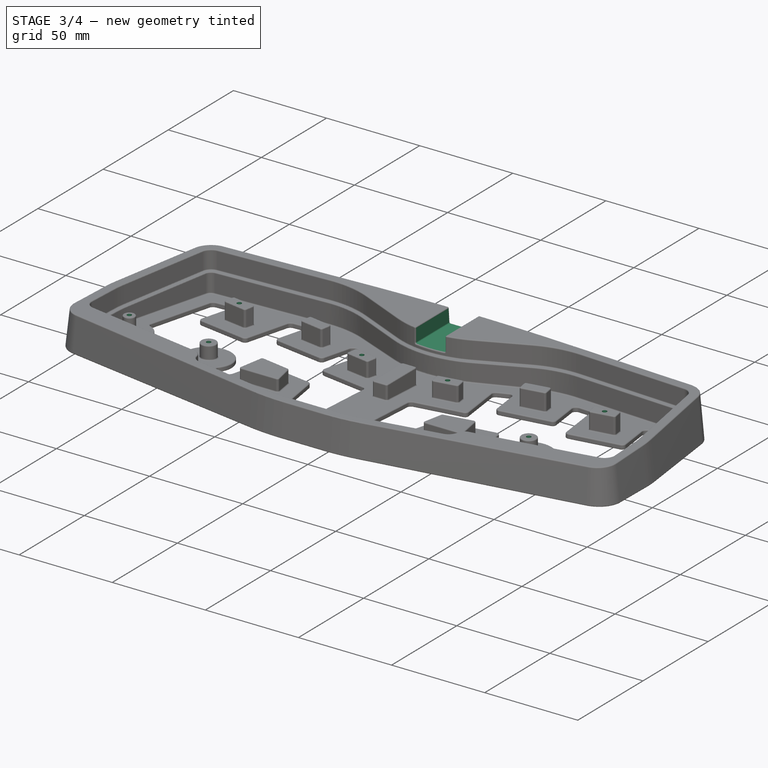
[diagram: stage 3 of 4 — iso view after this stage's code; geometry added in this stage tinted green]
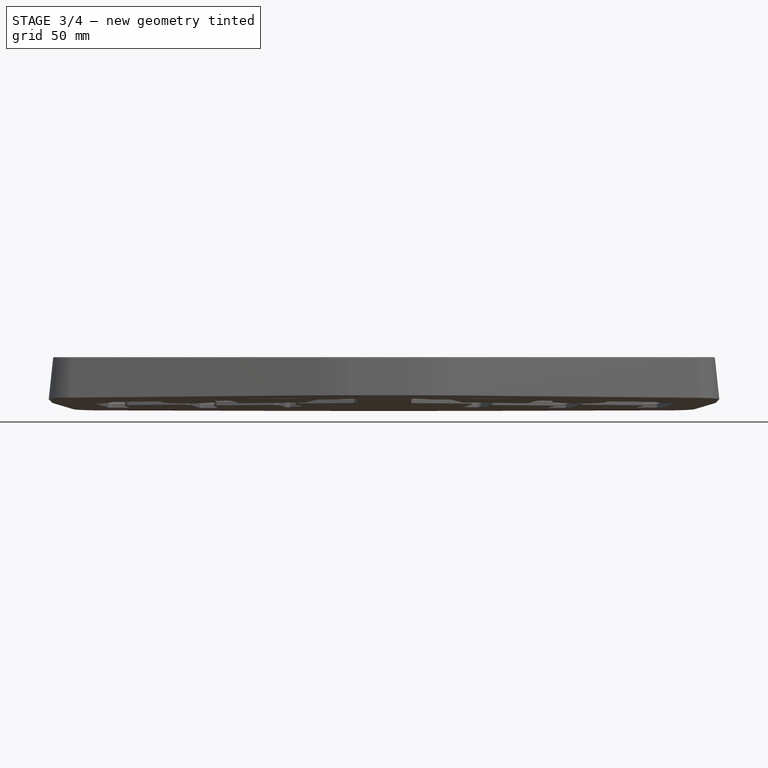
[diagram: stage 3 of 4 — front view after this stage's code; geometry added in this stage tinted green]
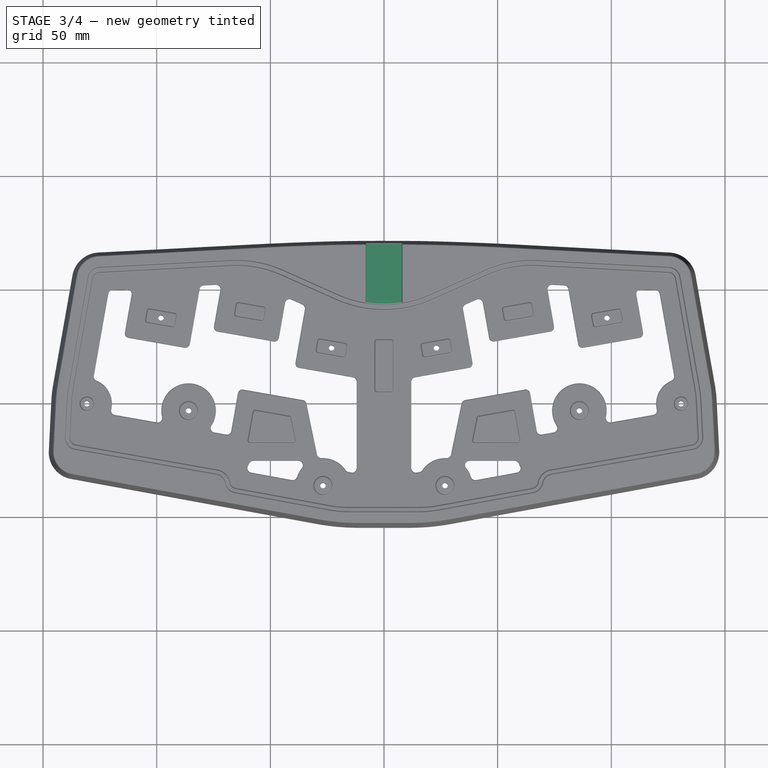
[diagram: stage 3 of 4 — top view after this stage's code; geometry added in this stage tinted green]
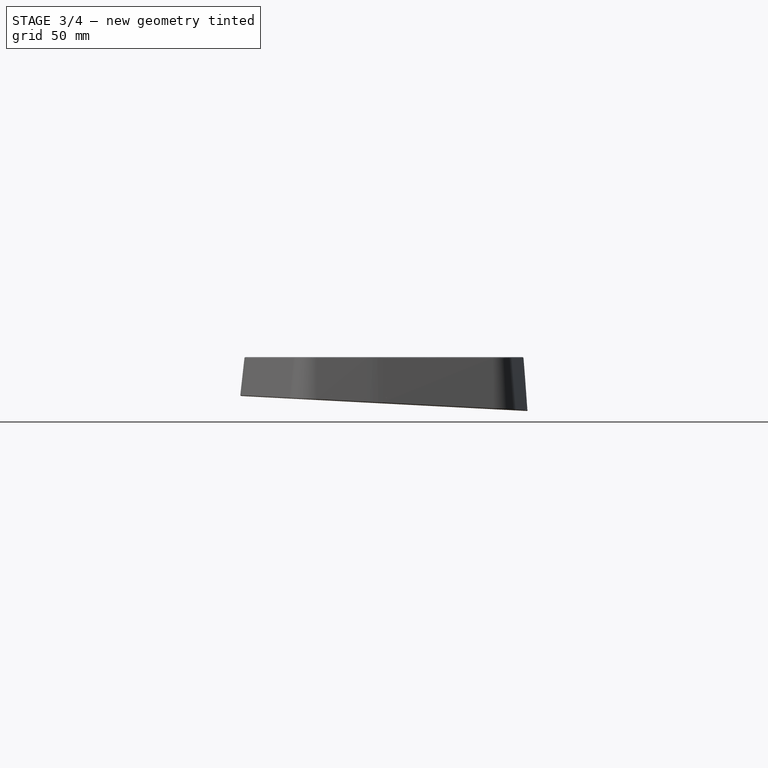
[diagram: stage 3 of 4 — right view after this stage's code; geometry added in this stage tinted green]
FEATURE [Sketcher::SketchObject] Sketch008
  FullyConstrained = true
  MapMode = 5
  Placement = pos=(0,0,20) rot=(0,0,1;0rad)
  Support = -> [Pocket002]
  sketch-geometry (4):
    g0: LineSegment StartX=-8 StartY=85 StartZ=0 EndX=8 EndY=85 EndZ=0
    g1: LineSegment StartX=8 StartY=85 StartZ=0 EndX=8 EndY=30 EndZ=0
    g2: LineSegment StartX=8 StartY=30 StartZ=0 EndX=-8 EndY=30 EndZ=0
    g3: LineSegment StartX=-8 StartY=30 StartZ=0 EndX=-8 EndY=85 EndZ=0
  constraints (11):
    c: Coincident(g0,g1)
    c: Coincident(g1,g2)
    c: Coincident(g2,g3)
    c: Coincident(g3,g0)
    c: Horizontal(g2)
    c: Vertical(g1)
    c: Vertical(g3)
    c: Symmetric(g0,g0,g-2)
    c: Distance(g0) = 16
    c: DistanceY(g-1,g1) = 30
    c: DistanceY(g1,g1) = 55
FEATURE [PartDesign::Pocket] Pocket003
  BaseFeature = -> Pocket002
  Direction = (0,0,-1)
  Length = 0
  Length2 = 5
  Offset = -2
  Profile = -> Sketch008
  ReferenceAxis = -> Sketch008 [N_Axis]
  Type = 3
  UpToFace = -> Pocket002 [Face49]
FEATURE [Sketcher::SketchObject] Sketch009
  FullyConstrained = false
  MapMode = 5
  Placement = pos=(0,0,20) rot=(0,0,1;0rad)
  Support = -> [Pocket003]
  sketch-geometry (68):
    g0: BSplineCurve PolesCount=4 KnotsCount=2 Degree=3 IsPeriodic=0
    g1: BSplineCurve PolesCount=4 KnotsCount=2 Degree=3 IsPeriodic=0
    g2: BSplineCurve PolesCount=4 KnotsCount=2 Degree=3 IsPeriodic=0
    g3: BSplineCurve PolesCount=4 KnotsCount=2 Degree=3 IsPeriodic=0
    g4: BSplineCurve PolesCount=4 KnotsCount=2 Degree=3 IsPeriodic=0
    g5: BSplineCurve PolesCount=4 KnotsCount=2 Degree=3 IsPeriodic=0
    g6: BSplineCurve PolesCount=4 KnotsCount=2 Degree=3 IsPeriodic=0
    g7: BSplineCurve PolesCount=4 KnotsCount=2 Degree=3 IsPeriodic=0
    g8: BSplineCurve PolesCount=4 KnotsCount=2 Degree=3 IsPeriodic=0
    g9: BSplineCurve PolesCount=4 KnotsCount=2 Degree=3 IsPeriodic=0
    g10: BSplineCurve PolesCount=4 KnotsCount=2 Degree=3 IsPeriodic=0
    g11: BSplineCurve PolesCount=4 KnotsCount=2 Degree=3 IsPeriodic=0
    g12: BSplineCurve PolesCount=4 KnotsCount=2 Degree=3 IsPeriodic=0
    g13: BSplineCurve PolesCount=4 KnotsCount=2 Degree=3 IsPeriodic=0
    g14: BSplineCurve PolesCount=4 KnotsCount=2 Degree=3 IsPeriodic=0
    g15: BSplineCurve PolesCount=4 KnotsCount=2 Degree=3 IsPeriodic=0
    g16: BSplineCurve PolesCount=4 KnotsCount=2 Degree=3 IsPeriodic=0
    g17: BSplineCurve PolesCount=4 KnotsCount=2 Degree=3 IsPeriodic=0
    g18: BSplineCurve PolesCount=4 KnotsCount=2 Degree=3 IsPeriodic=0
    g19: BSplineCurve PolesCount=4 KnotsCount=2 Degree=3 IsPeriodic=0
    g20: BSplineCurve PolesCount=4 KnotsCount=2 Degree=3 IsPeriodic=0
    g21: BSplineCurve PolesCount=4 KnotsCount=2 Degree=3 IsPeriodic=0
    g22: BSplineCurve PolesCount=4 KnotsCount=2 Degree=3 IsPeriodic=0
    g23: BSplineCurve PolesCount=4 KnotsCount=2 Degree=3 IsPeriodic=0
    g24: BSplineCurve PolesCount=4 KnotsCount=2 Degree=3 IsPeriodic=0
    g25: BSplineCurve PolesCount=4 KnotsCount=2 Degree=3 IsPeriodic=0
    g26: BSplineCurve PolesCount=4 KnotsCount=2 Degree=3 IsPeriodic=0
    g27: BSplineCurve PolesCount=4 KnotsCount=2 Degree=3 IsPeriodic=0
    g28: BSplineCurve PolesCount=4 KnotsCount=2 Degree=3 IsPeriodic=0
    g29: BSplineCurve PolesCount=4 KnotsCount=2 Degree=3 IsPeriodic=0
    g30: BSplineCurve PolesCount=4 KnotsCount=2 Degree=3 IsPeriodic=0
    g31: BSplineCurve PolesCount=4 KnotsCount=2 Degree=3 IsPeriodic=0
    g32: BSplineCurve PolesCount=4 KnotsCount=2 Degree=3 IsPeriodic=0
    g33: LineSegment StartX=34.0617 StartY=60.1407 StartZ=0 EndX=33.0363 EndY=59.0854 EndZ=0
    g34: BSplineCurve PolesCount=4 KnotsCount=2 Degree=3 IsPeriodic=0
    g35: BSplineCurve PolesCount=4 KnotsCount=2 Degree=3 IsPeriodic=0
    g36: BSplineCurve PolesCount=4 KnotsCount=2 Degree=3 IsPeriodic=0
    g37: BSplineCurve PolesCount=4 KnotsCount=2 Degree=3 IsPeriodic=0
    g38: BSplineCurve PolesCount=4 KnotsCount=2 Degree=3 IsPeriodic=0
    g39: BSplineCurve PolesCount=4 KnotsCount=2 Degree=3 IsPeriodic=0
    g40: BSplineCurve PolesCount=4 KnotsCount=2 Degree=3 IsPeriodic=0
    g41: BSplineCurve PolesCount=4 KnotsCount=2 Degree=3 IsPeriodic=0
    g42: BSplineCurve PolesCount=4 KnotsCount=2 Degree=3 IsPeriodic=0
    g43: BSplineCurve PolesCount=4 KnotsCount=2 Degree=3 IsPeriodic=0
    g44: BSplineCurve PolesCount=4 KnotsCount=2 Degree=3 IsPeriodic=0
    g45: BSplineCurve PolesCount=4 KnotsCount=2 Degree=3 IsPeriodic=0
    g46: BSplineCurve PolesCount=4 KnotsCount=2 Degree=3 IsPeriodic=0
    g47: BSplineCurve PolesCount=4 KnotsCount=2 Degree=3 IsPeriodic=0
    g48: BSplineCurve PolesCount=4 KnotsCount=2 Degree=3 IsPeriodic=0
    g49: BSplineCurve PolesCount=4 KnotsCount=2 Degree=3 IsPeriodic=0
    g50: BSplineCurve PolesCount=4 KnotsCount=2 Degree=3 IsPeriodic=0
    g51: BSplineCurve PolesCount=4 KnotsCount=2 Degree=3 IsPeriodic=0
    g52: BSplineCurve PolesCount=4 KnotsCount=2 Degree=3 IsPeriodic=0
    g53: BSplineCurve PolesCount=4 KnotsCount=2 Degree=3 IsPeriodic=0
    g54: BSplineCurve PolesCount=4 KnotsCount=2 Degree=3 IsPeriodic=0
    g55: BSplineCurve PolesCount=4 KnotsCount=2 Degree=3 IsPeriodic=0
    g56: BSplineCurve PolesCount=4 KnotsCount=2 Degree=3 IsPeriodic=0
    g57: BSplineCurve PolesCount=4 KnotsCount=2 Degree=3 IsPeriodic=0
    g58: BSplineCurve PolesCount=4 KnotsCount=2 Degree=3 IsPeriodic=0
    g59: BSplineCurve PolesCount=4 KnotsCount=2 Degree=3 IsPeriodic=0
    g60: BSplineCurve PolesCount=4 KnotsCount=2 Degree=3 IsPeriodic=0
    g61: BSplineCurve PolesCount=4 KnotsCount=2 Degree=3 IsPeriodic=0
    g62: BSplineCurve PolesCount=4 KnotsCount=2 Degree=3 IsPeriodic=0
    g63: BSplineCurve PolesCount=4 KnotsCount=2 Degree=3 IsPeriodic=0
    g64: BSplineCurve PolesCount=4 KnotsCount=2 Degree=3 IsPeriodic=0
    g65: BSplineCurve PolesCount=4 KnotsCount=2 Degree=3 IsPeriodic=0
    g66: BSplineCurve PolesCount=4 KnotsCount=2 Degree=3 IsPeriodic=0
    g67: LineSegment StartX=-34.0617 StartY=60.1407 StartZ=0 EndX=-33.0363 EndY=59.0854 EndZ=0
  constraints (68):
    c: Coincident(g60,g61)
    c: Coincident(g57,g58)
    c: Coincident(g61,g62)
    c: Coincident(g56,g57)
    c: Coincident(g59,g60)
    c: Coincident(g58,g59)
    c: Coincident(g62,g63)
    c: Coincident(g63,g64)
    c: Coincident(g55,g56)
    c: Coincident(g54,g55)
    c: Coincident(g64,g67)
    c: Coincident(g53,g54)
    c: Coincident(g52,g53)
    c: Coincident(g65,g67)
    c: Coincident(g49,g50)
    c: Coincident(g46,g47)
    c: Coincident(g51,g52)
    c: Coincident(g50,g51)
    c: Coincident(g47,g48)
    c: Coincident(g45,g46)
    c: Coincident(g48,g49)
    c: Coincident(g65,g66)
    c: Coincident(g41,g42)
    c: Coincident(g38,g39)
    c: Coincident(g42,g43)
    c: Coincident(g34,g66)
    c: Coincident(g34,g35)
    c: Coincident(g39,g40)
    c: Coincident(g40,g41)
    c: Coincident(g37,g38)
    c: Coincident(g43,g44)
    c: Coincident(g44,g45)
    c: Coincident(g36,g37)
    c: Coincident(g35,g36)
    c: Coincident(g1,g2)
    c: Coincident(g2,g3)
    c: Coincident(g10,g11)
    c: Coincident(g9,g10)
    c: Coincident(g3,g4)
    c: Coincident(g6,g7)
    c: Coincident(g5,g6)
    c: Coincident(g0,g1)
    c: Coincident(g0,g32)
    c: Coincident(g8,g9)
    c: Coincident(g4,g5)
    c: Coincident(g7,g8)
    c: Coincident(g31,g32)
    c: Coincident(g14,g15)
    c: Coincident(g11,g12)
    c: Coincident(g13,g14)
    c: Coincident(g16,g17)
    c: Coincident(g17,g18)
    c: Coincident(g12,g13)
    c: Coincident(g15,g16)
    c: Coincident(g31,g33)
    c: Coincident(g18,g19)
    c: Coincident(g19,g20)
    c: Coincident(g30,g33)
    c: Coincident(g20,g21)
    c: Coincident(g21,g22)
    c: Coincident(g29,g30)
    c: Coincident(g28,g29)
    c: Coincident(g24,g25)
    c: Coincident(g25,g26)
    c: Coincident(g22,g23)
    c: Coincident(g27,g28)
    c: Coincident(g23,g24)
    c: Coincident(g26,g27)
FEATURE [PartDesign::Fillet] Fillet
  Base = -> Pocket003 [Edge1,Edge2,Edge3,Edge4,Edge5,Edge6,Edge7,Edge8,Edge9,Edge10,Edge11,Edge12,Edge13,Edge14,Edge15,Edge16,Edge17,Edge18,Edge19,Edge20,Edge21,Edge22,Edge23,Edge24,Edge25,Edge26,Edge27,Edge28,Edge29,Edge30,Edge31,Edge32,Edge33,Edge34,Edge35,Edge36,Edge37,Edge38,Edge39,Edge40,+744 more]
  BaseFeature = -> Pocket003
  Radius = 0.5
  SupportTransform = false
  UseAllEdges = false
FEATURE [Sketcher::SketchObject] Sketch010
  ExternalGeometry = -> [Pocket001]
  FullyConstrained = true
  MapMode = 5
  Placement = pos=(0,0,10) rot=(0,0,1;0rad)
  Support = -> [Pocket001]
  sketch-geometry (10):
    g0: Circle CenterX=23.0677 CenterY=24.3223 CenterZ=0 NormalX=0 NormalY=0 NormalZ=1 AngleXU=0 Radius=1
    g1: Circle CenterX=-23.0677 CenterY=24.3223 CenterZ=0 NormalX=0 NormalY=0 NormalZ=1 AngleXU=0 Radius=1
    g2: Circle CenterX=98.11 CenterY=37.5543 CenterZ=0 NormalX=0 NormalY=0 NormalZ=1 AngleXU=0 Radius=1
    g3: Circle CenterX=130.715 CenterY=-0.220297 CenterZ=0 NormalX=0 NormalY=0 NormalZ=1 AngleXU=0 Radius=1
    g4: Circle CenterX=85.9654 CenterY=-3.27486 CenterZ=0 NormalX=0 NormalY=0 NormalZ=1 AngleXU=0 Radius=1
    g5: Circle CenterX=26.8409 CenterY=-36.2437 CenterZ=0 NormalX=0 NormalY=0 NormalZ=1 AngleXU=0 Radius=1
    g6: Circle CenterX=-26.8409 CenterY=-36.2437 CenterZ=0 NormalX=0 NormalY=0 NormalZ=1 AngleXU=0 Radius=1
    g7: Circle CenterX=-85.9654 CenterY=-3.27486 CenterZ=0 NormalX=0 NormalY=0 NormalZ=1 AngleXU=0 Radius=1
    g8: Circle CenterX=-130.715 CenterY=-0.220297 CenterZ=0 NormalX=0 NormalY=0 NormalZ=1 AngleXU=0 Radius=1
    g9: Circle CenterX=-98.11 CenterY=37.5543 CenterZ=0 NormalX=0 NormalY=0 NormalZ=1 AngleXU=0 Radius=1
  constraints (20):
    c: Symmetric(g-3,g-4,g0)
    c: Symmetric(g1,g0,g-2)
    c: Symmetric(g-5,g-6,g2)
    c: Coincident(g3,g-9)
    c: Coincident(g4,g-7)
    c: Coincident(g5,g-8)
    c: Symmetric(g6,g5,g-2)
    c: Symmetric(g7,g4,g-2)
    c: Symmetric(g8,g3,g-2)
    c: Symmetric(g9,g2,g-2)
    c: Equal(g9,g8)
    c: Equal(g8,g7)
    c: Equal(g7,g1)
    c: Equal(g1,g6)
    c: Equal(g6,g0)
    c: Equal(g0,g2)
    c: Equal(g2,g4)
    c: Equal(g4,g3)
    c: Equal(g3,g5)
    c: Diameter(g9) = 2
FEATURE [PartDesign::Hole] Hole
  BaseFeature = -> Fillet
  CustomThreadClearance = 0
  Depth = 649.126
  DepthType = 1
  Diameter = 2.42
  DrillForDepth = false
  DrillPoint = 1
  DrillPointAngle = 118
  HoleCutCountersinkAngle = 90
  HoleCutCustomValues = false
  HoleCutDepth = 0
  HoleCutDiameter = 6.1
  HoleCutType = 0
  ModelThread = false
  Profile = -> Sketch010
  Tapered = false
  TaperedAngle = 90
  ThreadClass = 0
  ThreadDepth = 649.126
  ThreadDepthType = 0
  ThreadDirection = 0
  ThreadFit = 0
  ThreadSize = 7
  ThreadType = 1
  Threaded = false
  UseCustomThreadClearance = false
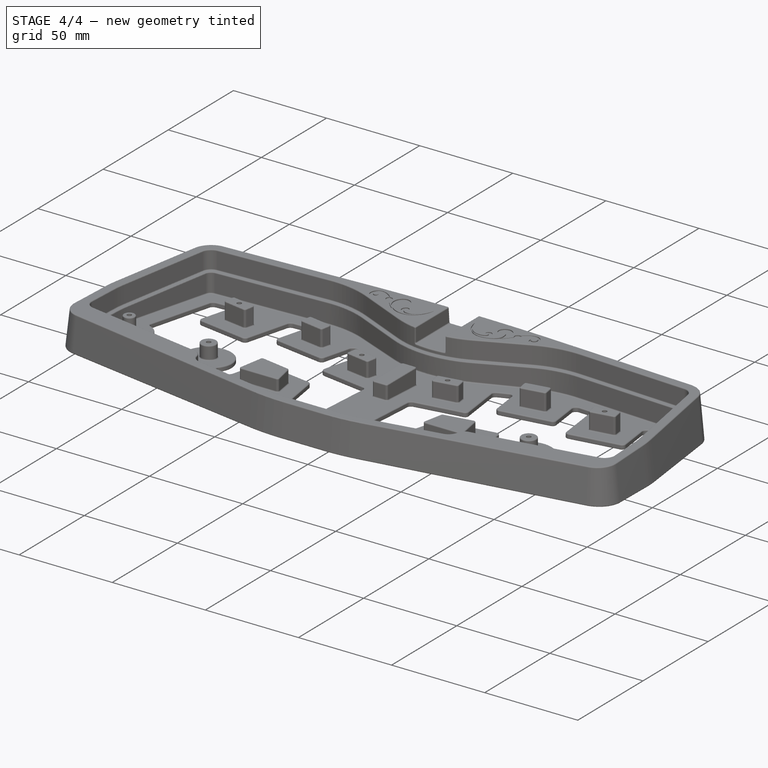
[diagram: stage 4 of 4 — iso view after this stage's code; geometry added in this stage tinted green]
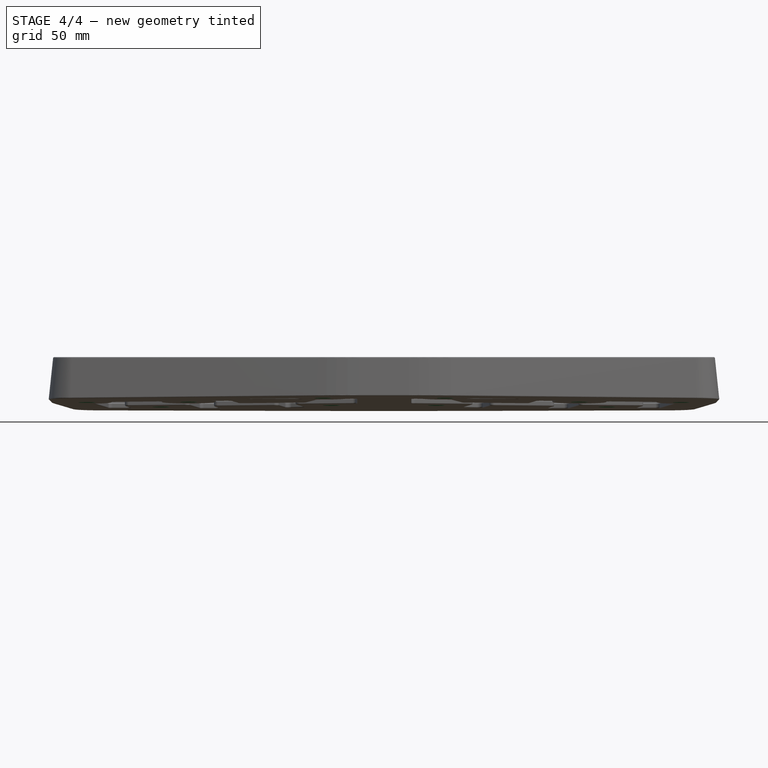
[diagram: stage 4 of 4 — front view after this stage's code; geometry added in this stage tinted green]
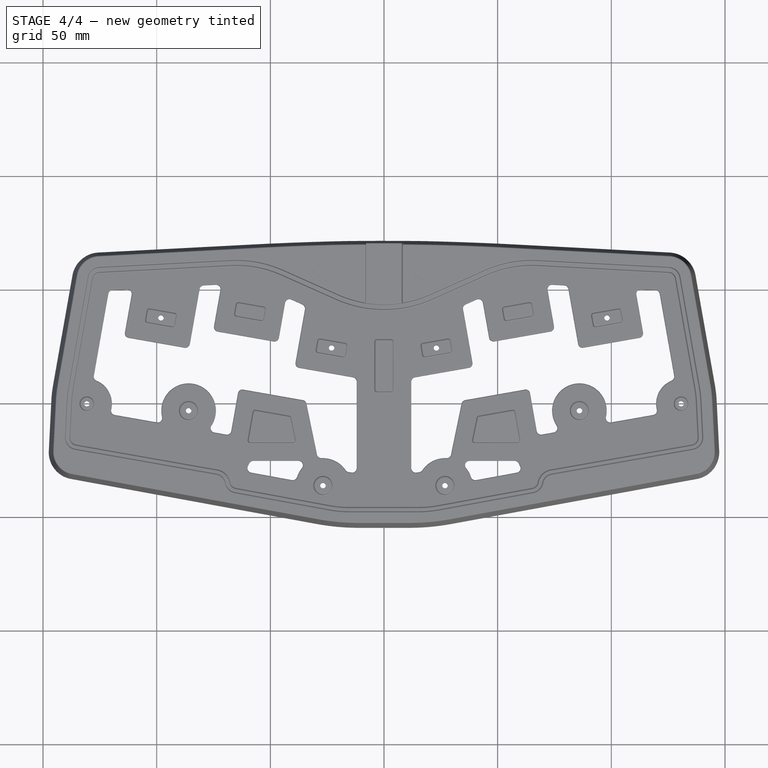
[diagram: stage 4 of 4 — top view after this stage's code; geometry added in this stage tinted green]
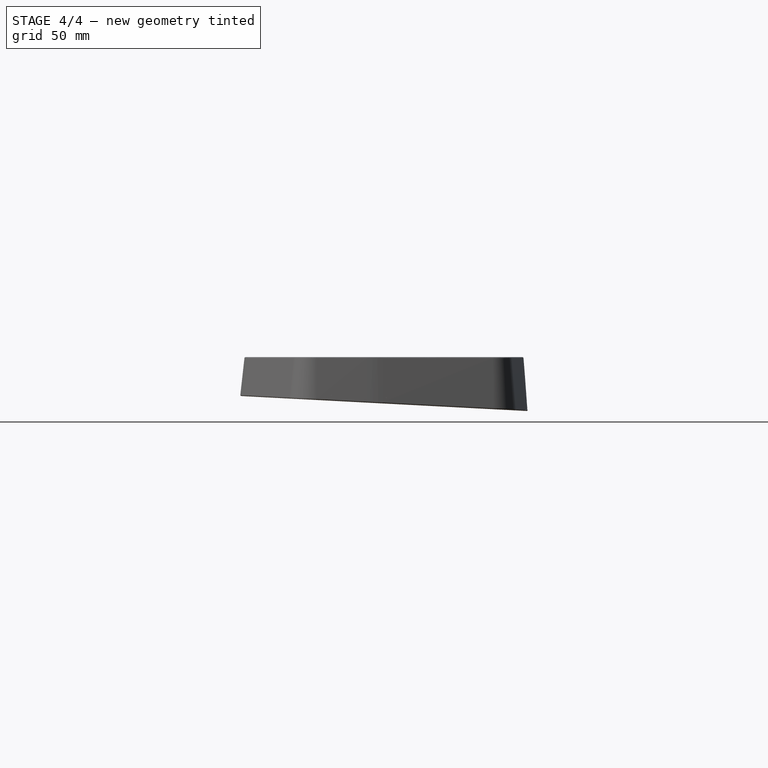
[diagram: stage 4 of 4 — right view after this stage's code; geometry added in this stage tinted green]
FEATURE [PartDesign::Chamfer] Chamfer
  Angle = 45
  Base = -> Hole [Edge379,Edge380,Edge435,Edge436,Edge389,Edge437,Edge448,Edge446,Edge494,Edge447]
  BaseFeature = -> Hole
  ChamferType = 0
  FlipDirection = false
  Size = 2.5
  Size2 = 1
  SupportTransform = false
  UseAllEdges = false
FEATURE [PartDesign::Pocket] Pocket004
  BaseFeature = -> Chamfer
  Direction = (0,0,-1)
  Length = 0.5
  Length2 = 5
  Profile = -> Sketch009
  ReferenceAxis = -> Sketch009 [N_Axis]
  Type = 0
FEATURE [PartDesign::Body] Body
  Group = -> [Sketch,Sketch001,Sketch002,Sketch006,Sketch007,AdditiveLoft,Pocket,Pocket001,Pocket002,Sketch008,Pocket003,Sketch009,Fillet,Sketch010,Hole,Chamfer,Pocket004]
  Origin = -> Origin
  Placement = pos=(0,0,0) rot=(1,0,0;0.05236rad)
  Tip = -> Pocket004
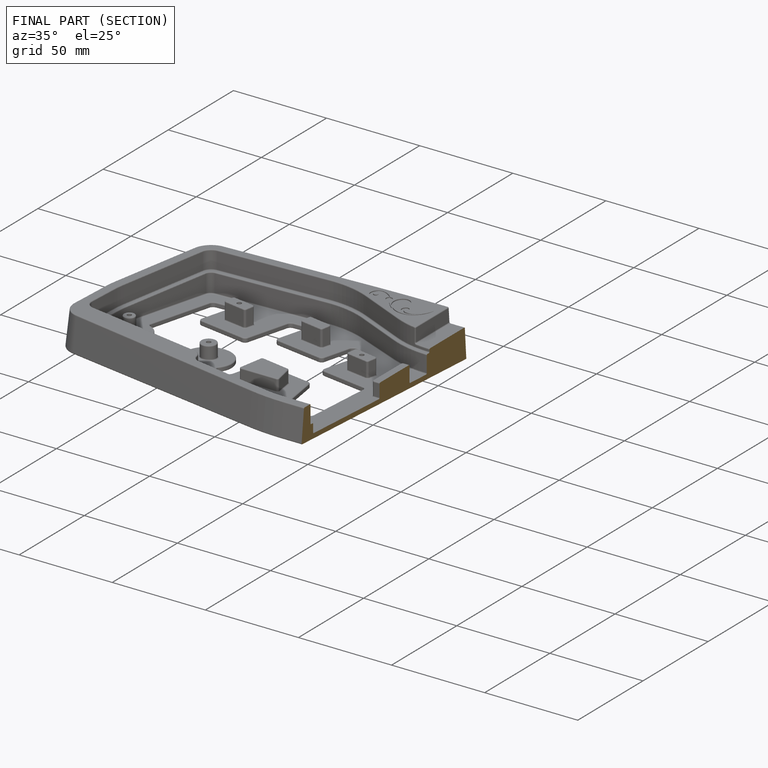
[diagram: finished part — half-section view (interior)]
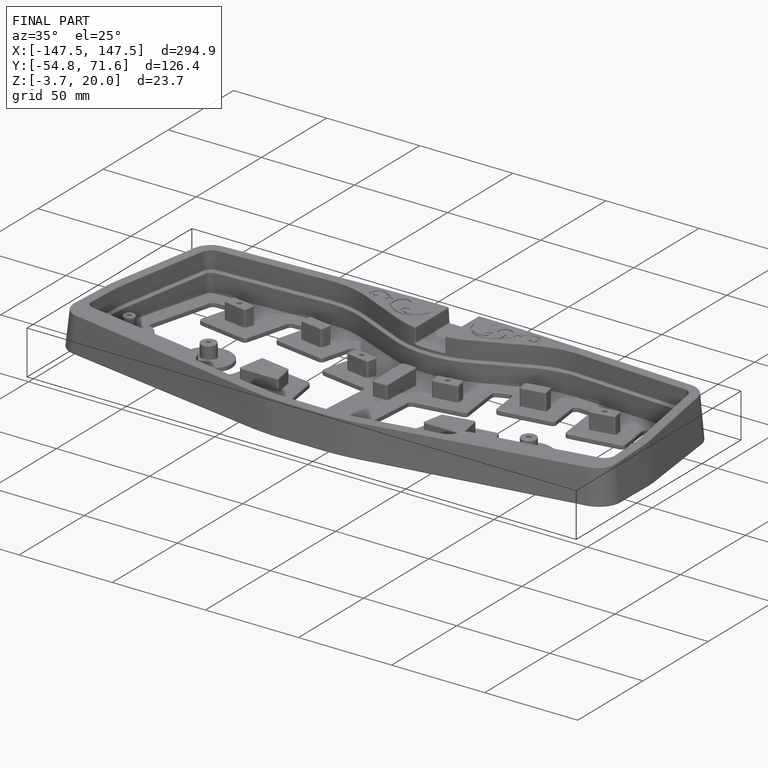
[diagram: finished part — iso view with bounding-box wireframe]
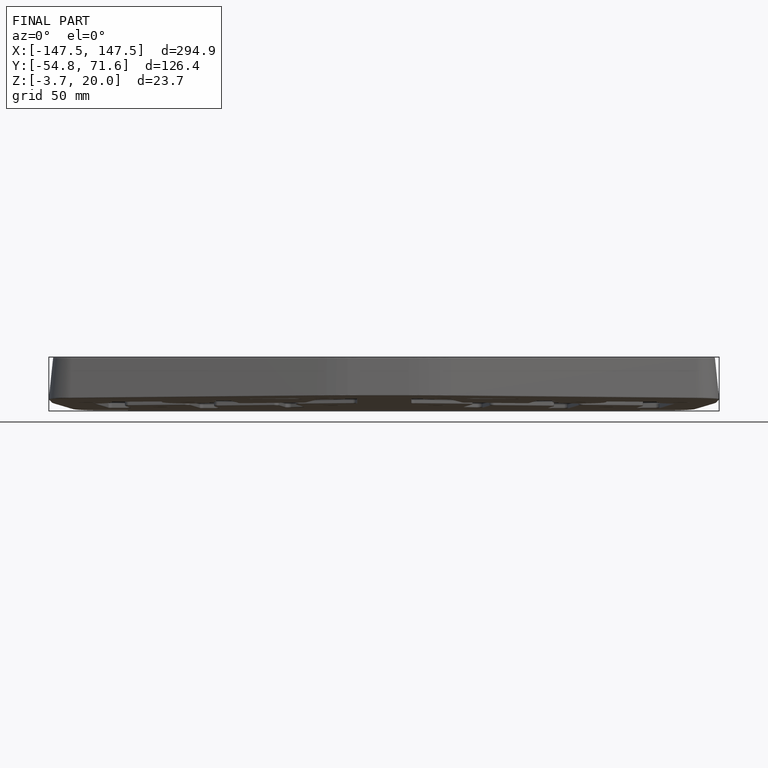
[diagram: finished part — front view with bounding-box wireframe]
